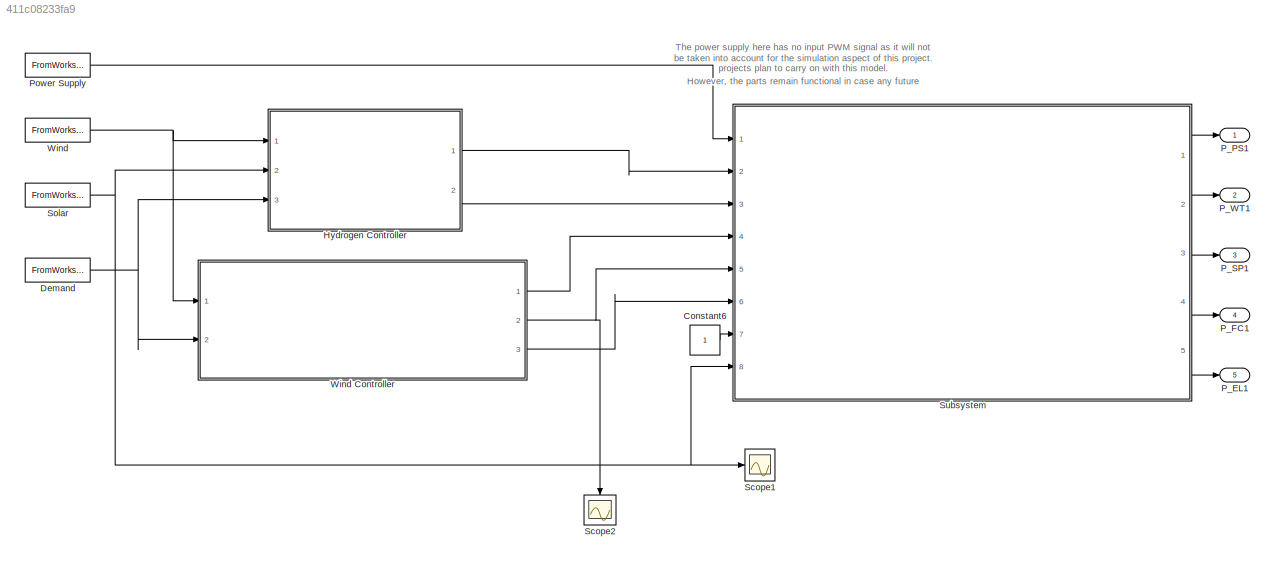
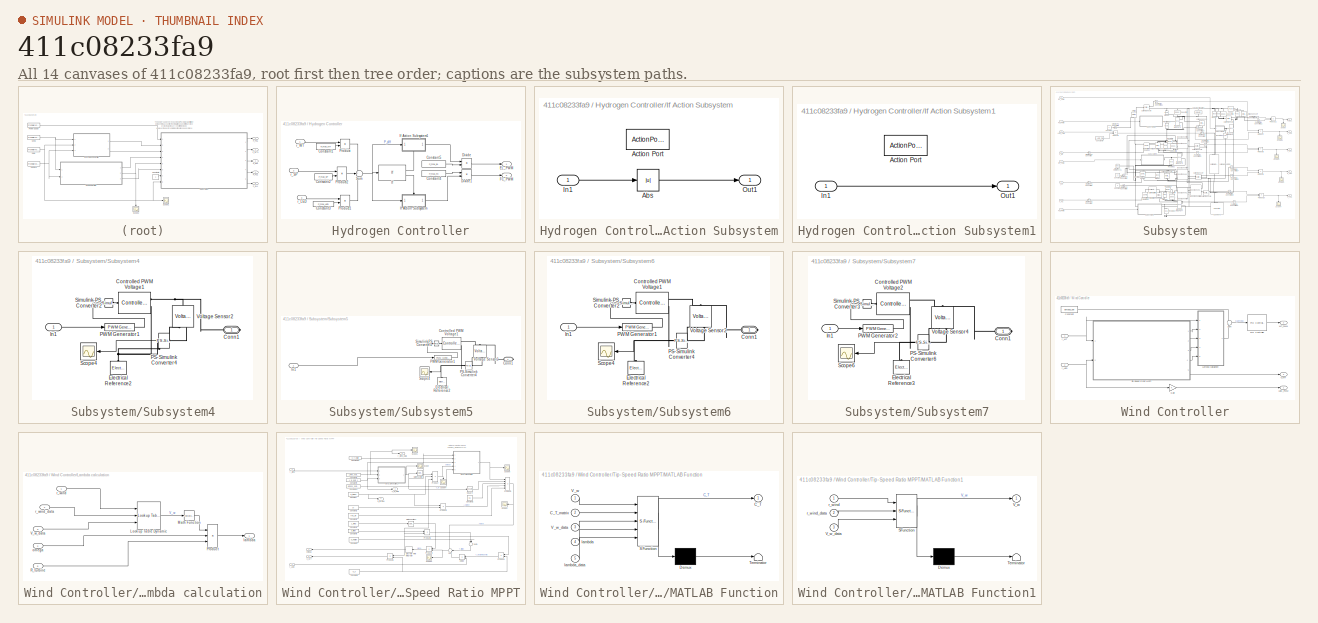
[diagram: thumbnail index - all 14 canvases of the model, root first then tree order]
MODEL slx_411c08233fa9
KIND model
CONFIG AbsTol = auto
CONFIG EnableMultiTasking = off
CONFIG FixedStep = auto
CONFIG MaxStep = auto
CONFIG MinStep = auto
CONFIG RelTol = 1e-3
CONFIG SampleTimeConstraint = Unconstrained
CONFIG Solver = VariableStepAuto
CONFIG SolverName = VariableStepAuto
CONFIG StartTime = 0.0
CONFIG StopTime = T_sim
BLOCK [Constant] Constant6
BLOCK [FromWorkspace] Demand
  Interpolate = off
  OutputAfterFinalValue = Holding final value
  SampleTime = step_size
  VariableName = r_LED
  ZeroCross = on
BLOCK [SubSystem] Hydrogen Controller
  Ports = [3, 2]
  RequestExecContextInheritance = off
BLOCK [Constant] Hydrogen Controller/Constant1
  Value = P_max_WT
BLOCK [Constant] Hydrogen Controller/Constant2
  Value = P_max_SP
BLOCK [Constant] Hydrogen Controller/Constant3
  Value = P_max_LED
BLOCK [Constant] Hydrogen Controller/Constant4
  Value = P_max_FC
BLOCK [Constant] Hydrogen Controller/Constant5
  Value = P_max_EL
BLOCK [Product] Hydrogen Controller/Divide
  InputSameDT = off
  Inputs = */
  OutDataTypeStr = Inherit: Inherit via internal rule
  Ports = [2, 1]
  RndMeth = Floor
  SaturateOnIntegerOverflow = off
BLOCK [Product] Hydrogen Controller/Divide1
  InputSameDT = off
  Inputs = /*
  OutDataTypeStr = Inherit: Inherit via internal rule
  Ports = [2, 1]
  RndMeth = Floor
  SaturateOnIntegerOverflow = off
BLOCK [Outport] Hydrogen Controller/EL_PWM
  IconDisplay = Port number
  VectorParamsAs1DForOutWhenUnconnected = on
BLOCK [Outport] Hydrogen Controller/FC_PWM
  IconDisplay = Port number
  Port = 2
  VectorParamsAs1DForOutWhenUnconnected = on
BLOCK [If] Hydrogen Controller/If
  Ports = [1, 2]
BLOCK [SubSystem] Hydrogen Controller/If Action Subsystem
  Ports = [1, 1, 0, 0, 0, 0, 0, 1]
  RequestExecContextInheritance = off
  TreatAsAtomicUnit = on
BLOCK [Abs] Hydrogen Controller/If Action Subsystem/Abs
  SaturateOnIntegerOverflow = off
BLOCK [ActionPort] Hydrogen Controller/If Action Subsystem/Action Port
BLOCK [Inport] Hydrogen Controller/If Action Subsystem/In1
  IconDisplay = Port number
BLOCK [Outport] Hydrogen Controller/If Action Subsystem/Out1
  IconDisplay = Port number
  VectorParamsAs1DForOutWhenUnconnected = on
BLOCK [SubSystem] Hydrogen Controller/If Action Subsystem1
  Ports = [1, 1, 0, 0, 0, 0, 0, 1]
  RequestExecContextInheritance = off
  TreatAsAtomicUnit = on
BLOCK [ActionPort] Hydrogen Controller/If Action Subsystem1/Action Port
BLOCK [Inport] Hydrogen Controller/If Action Subsystem1/In1
  IconDisplay = Port number
BLOCK [Outport] Hydrogen Controller/If Action Subsystem1/Out1
  IconDisplay = Port number
  VectorParamsAs1DForOutWhenUnconnected = on
BLOCK [Product] Hydrogen Controller/Product
  InputSameDT = off
  OutDataTypeStr = Inherit: Inherit via internal rule
  Ports = [2, 1]
  RndMeth = Floor
  SaturateOnIntegerOverflow = off
BLOCK [Product] Hydrogen Controller/Product1
  InputSameDT = off
  OutDataTypeStr = Inherit: Inherit via internal rule
  Ports = [2, 1]
  RndMeth = Floor
  SaturateOnIntegerOverflow = off
BLOCK [Product] Hydrogen Controller/Product2
  InputSameDT = off
  OutDataTypeStr = Inherit: Inherit via internal rule
  Ports = [2, 1]
  RndMeth = Floor
  SaturateOnIntegerOverflow = off
BLOCK [Sum] Hydrogen Controller/Sum
  IconShape = round
  InputSameDT = off
  Inputs = ++-
  OutDataTypeStr = Inherit: Inherit via internal rule
  Ports = [3, 1]
  SaturateOnIntegerOverflow = off
BLOCK [Inport] Hydrogen Controller/r_LED
  IconDisplay = Port number
  Port = 3
BLOCK [Inport] Hydrogen Controller/r_SP
  IconDisplay = Port number
  Port = 2
BLOCK [Inport] Hydrogen Controller/r_WT
  IconDisplay = Port number
BLOCK [Outport] P_EL1
  IconDisplay = Port number
  Port = 5
  VectorParamsAs1DForOutWhenUnconnected = on
BLOCK [Outport] P_FC1
  IconDisplay = Port number
  Port = 4
  VectorParamsAs1DForOutWhenUnconnected = on
BLOCK [Outport] P_PS1
  IconDisplay = Port number
  VectorParamsAs1DForOutWhenUnconnected = on
BLOCK [Outport] P_SP1
  IconDisplay = Port number
  Port = 3
  VectorParamsAs1DForOutWhenUnconnected = on
BLOCK [Outport] P_WT1
  IconDisplay = Port number
  Port = 2
  VectorParamsAs1DForOutWhenUnconnected = on
BLOCK [FromWorkspace] Power Supply
  Interpolate = off
  OutputAfterFinalValue = Holding final value
  SampleTime = step_size
  VariableName = r_PS
  ZeroCross = on
BLOCK [Scope] Scope1
  Floating = off
  NumInputPorts = 1
  Ports = [1]
  ScopeSpecificationString = Simulink.scopes.TimeScopeBlockCfg('CurrentConfiguration', extmgr.ConfigurationSet(extmgr.Configuration('Core','General UI',true),extmgr.Configuration('Core','Source UI',true),extmgr.Configuration('Sources','WiredSimulink',true,'DataLoggingVariableName','ScopeData13'),extmgr.Configuration('Visuals','Time Domain',true),extmgr.Configuration('Tools','Plot Navigation',true),extmgr.Configuration('Tools'...<+41ch>
BLOCK [Scope] Scope2
  Floating = off
  NumInputPorts = 1
  Ports = [1]
  ScopeSpecificationString = Simulink.scopes.TimeScopeBlockCfg('CurrentConfiguration', extmgr.ConfigurationSet(extmgr.Configuration('Core','General UI',true),extmgr.Configuration('Core','Source UI',true),extmgr.Configuration('Sources','WiredSimulink',true,'DataLoggingVariableName','ScopeData14'),extmgr.Configuration('Visuals','Time Domain',true,'SerializedDisplays',{struct('MinYLimReal','-1.10014','MaxYLimReal','8.90126','YLa...<+1407ch>
BLOCK [FromWorkspace] Solar
  Interpolate = off
  OutputAfterFinalValue = Holding final value
  SampleTime = step_size
  VariableName = r_SP
  ZeroCross = on
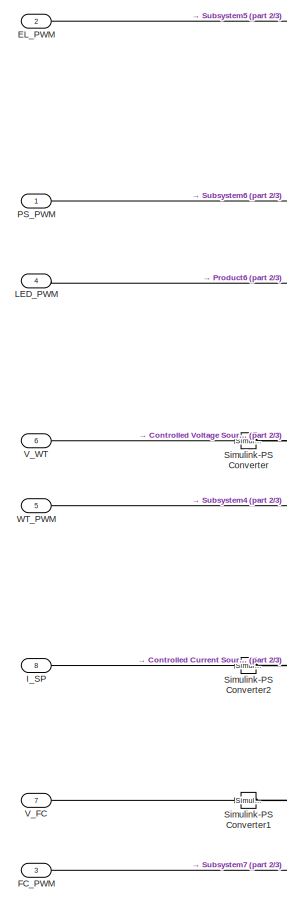
[diagram: Subsystem - part 1/3, left side, full height]
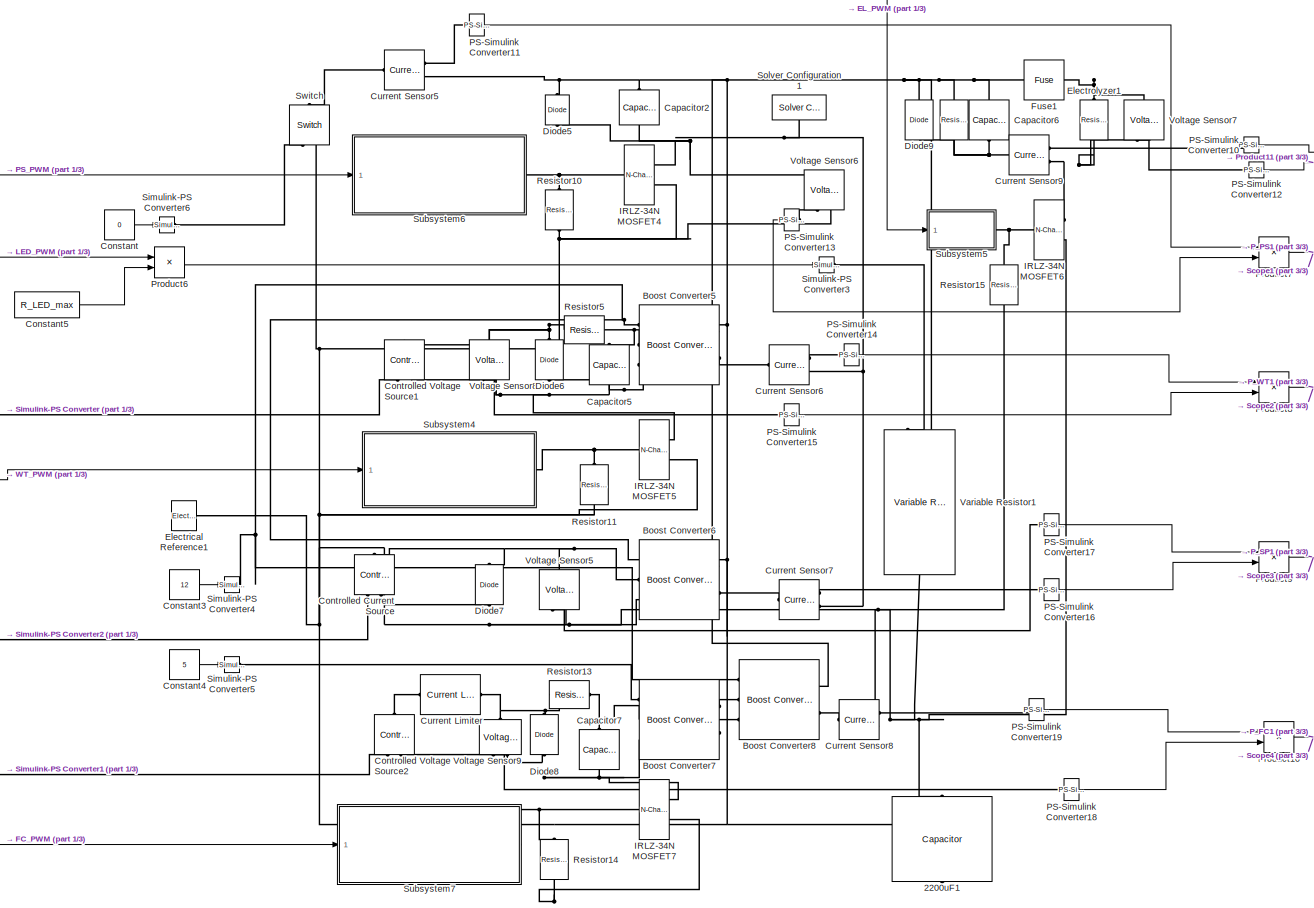
[diagram: Subsystem - part 2/3, center side, full height]
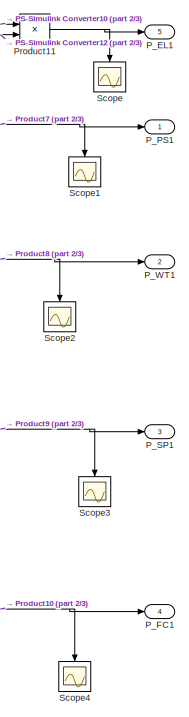
[diagram: Subsystem - part 3/3, right side, full height]
BLOCK [SubSystem] Subsystem
  Ports = [8, 5]
  RequestExecContextInheritance = off
BLOCK [Reference] Subsystem/   REF=fl_lib/Electrical/Electrical Elements/Resistor
  Ports = [0, 0, 0, 0, 0, 1, 1]
  SourceBlock = fl_lib/Electrical/Electrical Elements/Resistor
  SourceProductBaseCode = SS
  SourceProductName = Simscape
  SourceType = Resistor
BLOCK [Reference] Subsystem/2200uF1  REF=fl_lib/Electrical/Electrical Elements/Capacitor
  Ports = [0, 0, 0, 0, 0, 1, 1]
  SourceBlock = fl_lib/Electrical/Electrical Elements/Capacitor
  SourceProductBaseCode = SS
  SourceProductName = Simscape
  SourceType = Capacitor
BLOCK [Reference] Subsystem/Boost Converter5  REF=ee_lib/Semiconductors &
Converters/Converters/Boost Converter
  Ports = [0, 0, 0, 0, 0, 3, 2]
  SourceBlock = ee_lib/Semiconductors &\nConverters/Converters/Boost Converter
  SourceProductBaseCode = PS
  SourceProductName = Simscape Electrical
  SourceType = Boost Converter
BLOCK [Reference] Subsystem/Boost Converter6  REF=ee_lib/Semiconductors &
Converters/Converters/Boost Converter
  Ports = [0, 0, 0, 0, 0, 3, 2]
  SourceBlock = ee_lib/Semiconductors &\nConverters/Converters/Boost Converter
  SourceProductBaseCode = PS
  SourceProductName = Simscape Electrical
  SourceType = Boost Converter
BLOCK [Reference] Subsystem/Boost Converter7  REF=ee_lib/Semiconductors &
Converters/Converters/Boost Converter
  Ports = [0, 0, 0, 0, 0, 3, 2]
  SourceBlock = ee_lib/Semiconductors &\nConverters/Converters/Boost Converter
  SourceProductBaseCode = PS
  SourceProductName = Simscape Electrical
  SourceType = Boost Converter
BLOCK [Reference] Subsystem/Boost Converter8  REF=ee_lib/Semiconductors &
Converters/Converters/Boost Converter
  Ports = [0, 0, 0, 0, 0, 3, 2]
  SourceBlock = ee_lib/Semiconductors &\nConverters/Converters/Boost Converter
  SourceProductBaseCode = PS
  SourceProductName = Simscape Electrical
  SourceType = Boost Converter
BLOCK [Reference] Subsystem/Capacitor2  REF=fl_lib/Electrical/Electrical Elements/Capacitor
  Ports = [0, 0, 0, 0, 0, 1, 1]
  SourceBlock = fl_lib/Electrical/Electrical Elements/Capacitor
  SourceProductBaseCode = SS
  SourceProductName = Simscape
  SourceType = Capacitor
BLOCK [Reference] Subsystem/Capacitor5  REF=fl_lib/Electrical/Electrical Elements/Capacitor
  Ports = [0, 0, 0, 0, 0, 1, 1]
  SourceBlock = fl_lib/Electrical/Electrical Elements/Capacitor
  SourceProductBaseCode = SS
  SourceProductName = Simscape
  SourceType = Capacitor
BLOCK [Reference] Subsystem/Capacitor6  REF=fl_lib/Electrical/Electrical Elements/Capacitor
  Ports = [0, 0, 0, 0, 0, 1, 1]
  SourceBlock = fl_lib/Electrical/Electrical Elements/Capacitor
  SourceProductBaseCode = SS
  SourceProductName = Simscape
  SourceType = Capacitor
BLOCK [Reference] Subsystem/Capacitor7  REF=fl_lib/Electrical/Electrical Elements/Capacitor
  Ports = [0, 0, 0, 0, 0, 1, 1]
  SourceBlock = fl_lib/Electrical/Electrical Elements/Capacitor
  SourceProductBaseCode = SS
  SourceProductName = Simscape
  SourceType = Capacitor
BLOCK [Constant] Subsystem/Constant
  Value = 0
BLOCK [Constant] Subsystem/Constant3
  Value = 12
BLOCK [Constant] Subsystem/Constant4
  Value = 5
BLOCK [Constant] Subsystem/Constant5
  Value = R_LED_max
BLOCK [Reference] Subsystem/Controlled Current Source  REF=fl_lib/Electrical/Electrical Sources/Controlled Current
Source
  Ports = [0, 0, 0, 0, 0, 1, 2]
  SourceBlock = fl_lib/Electrical/Electrical Sources/Controlled Current\nSource
  SourceProductBaseCode = SS
  SourceProductName = Simscape
  SourceType = Controlled Current\nSource
BLOCK [Reference] Subsystem/Controlled Voltage Source1  REF=fl_lib/Electrical/Electrical Sources/Controlled Voltage
Source
  Ports = [0, 0, 0, 0, 0, 1, 2]
  SourceBlock = fl_lib/Electrical/Electrical Sources/Controlled Voltage\nSource
  SourceProductBaseCode = SS
  SourceProductName = Simscape
  SourceType = Controlled Voltage\nSource
BLOCK [Reference] Subsystem/Controlled Voltage Source2  REF=fl_lib/Electrical/Electrical Sources/Controlled Voltage
Source
  Ports = [0, 0, 0, 0, 0, 1, 2]
  SourceBlock = fl_lib/Electrical/Electrical Sources/Controlled Voltage\nSource
  SourceProductBaseCode = SS
  SourceProductName = Simscape
  SourceType = Controlled Voltage\nSource
BLOCK [Reference] Subsystem/Current Limiter  REF=ee_lib/Semiconductors &
Converters/Current Limiter
  Ports = [0, 0, 0, 0, 0, 1, 1]
  SourceBlock = ee_lib/Semiconductors &\nConverters/Current Limiter
  SourceProductBaseCode = PS
  SourceProductName = Simscape Electrical
  SourceType = Current Limiter
BLOCK [Reference] Subsystem/Current Sensor5  REF=fl_lib/Electrical/Electrical Sensors/Current Sensor
  Ports = [0, 0, 0, 0, 0, 1, 2]
  SourceBlock = fl_lib/Electrical/Electrical Sensors/Current Sensor
  SourceProductBaseCode = SS
  SourceProductName = Simscape
  SourceType = Current Sensor
BLOCK [Reference] Subsystem/Current Sensor6  REF=fl_lib/Electrical/Electrical Sensors/Current Sensor
  Ports = [0, 0, 0, 0, 0, 1, 2]
  SourceBlock = fl_lib/Electrical/Electrical Sensors/Current Sensor
  SourceProductBaseCode = SS
  SourceProductName = Simscape
  SourceType = Current Sensor
BLOCK [Reference] Subsystem/Current Sensor7  REF=fl_lib/Electrical/Electrical Sensors/Current Sensor
  Ports = [0, 0, 0, 0, 0, 1, 2]
  SourceBlock = fl_lib/Electrical/Electrical Sensors/Current Sensor
  SourceProductBaseCode = SS
  SourceProductName = Simscape
  SourceType = Current Sensor
BLOCK [Reference] Subsystem/Current Sensor8  REF=fl_lib/Electrical/Electrical Sensors/Current Sensor
  Ports = [0, 0, 0, 0, 0, 1, 2]
  SourceBlock = fl_lib/Electrical/Electrical Sensors/Current Sensor
  SourceProductBaseCode = SS
  SourceProductName = Simscape
  SourceType = Current Sensor
BLOCK [Reference] Subsystem/Current Sensor9  REF=fl_lib/Electrical/Electrical Sensors/Current Sensor
  Ports = [0, 0, 0, 0, 0, 1, 2]
  SourceBlock = fl_lib/Electrical/Electrical Sensors/Current Sensor
  SourceProductBaseCode = SS
  SourceProductName = Simscape
  SourceType = Current Sensor
BLOCK [Reference] Subsystem/Diode5  REF=ee_lib/Semiconductors &
Converters/Diode
  Ports = [0, 0, 0, 0, 0, 1, 1]
  SourceBlock = ee_lib/Semiconductors &\nConverters/Diode
  SourceProductBaseCode = PS
  SourceProductName = Simscape Electrical
  SourceType = Diode
BLOCK [Reference] Subsystem/Diode6  REF=ee_lib/Semiconductors &
Converters/Diode
  Ports = [0, 0, 0, 0, 0, 1, 1]
  SourceBlock = ee_lib/Semiconductors &\nConverters/Diode
  SourceProductBaseCode = PS
  SourceProductName = Simscape Electrical
  SourceType = Diode
BLOCK [Reference] Subsystem/Diode7  REF=ee_lib/Semiconductors &
Converters/Diode
  Ports = [0, 0, 0, 0, 0, 1, 1]
  SourceBlock = ee_lib/Semiconductors &\nConverters/Diode
  SourceProductBaseCode = PS
  SourceProductName = Simscape Electrical
  SourceType = Diode
BLOCK [Reference] Subsystem/Diode8  REF=ee_lib/Semiconductors &
Converters/Diode
  Ports = [0, 0, 0, 0, 0, 1, 1]
  SourceBlock = ee_lib/Semiconductors &\nConverters/Diode
  SourceProductBaseCode = PS
  SourceProductName = Simscape Electrical
  SourceType = Diode
BLOCK [Reference] Subsystem/Diode9  REF=ee_lib/Semiconductors &
Converters/Diode
  Ports = [0, 0, 0, 0, 0, 1, 1]
  SourceBlock = ee_lib/Semiconductors &\nConverters/Diode
  SourceProductBaseCode = PS
  SourceProductName = Simscape Electrical
  SourceType = Diode
BLOCK [Inport] Subsystem/EL_PWM
  IconDisplay = Port number
  Port = 2
BLOCK [Reference] Subsystem/Electrical Reference1  REF=fl_lib/Electrical/Electrical Elements/Electrical Reference
  Ports = [0, 0, 0, 0, 0, 1]
  SourceBlock = fl_lib/Electrical/Electrical Elements/Electrical Reference
  SourceProductBaseCode = SS
  SourceProductName = Simscape
  SourceType = Electrical Reference
BLOCK [Reference] Subsystem/Electrolyzer1  REF=fl_lib/Electrical/Electrical Elements/Resistor
  Ports = [0, 0, 0, 0, 0, 1, 1]
  SourceBlock = fl_lib/Electrical/Electrical Elements/Resistor
  SourceProductBaseCode = SS
  SourceProductName = Simscape
  SourceType = Resistor
BLOCK [Inport] Subsystem/FC_PWM
  IconDisplay = Port number
  Port = 3
BLOCK [Reference] Subsystem/Fuse1  REF=ee_lib/Switches & Breakers/Fuse
  Ports = [0, 0, 0, 0, 0, 1, 1]
  SourceBlock = ee_lib/Switches & Breakers/Fuse
  SourceProductBaseCode = PS
  SourceProductName = Simscape Electrical
  SourceType = Fuse
BLOCK [Reference] Subsystem/IRLZ-34N MOSFET4  REF=ee_lib/Semiconductors &
Converters/N-Channel MOSFET
  Ports = [0, 0, 0, 0, 0, 1, 2]
  SourceBlock = ee_lib/Semiconductors &\nConverters/N-Channel MOSFET
  SourceProductBaseCode = PS
  SourceProductName = Simscape Electrical
  SourceType = N-Channel MOSFET
BLOCK [Reference] Subsystem/IRLZ-34N MOSFET5  REF=ee_lib/Semiconductors &
Converters/N-Channel MOSFET
  Ports = [0, 0, 0, 0, 0, 1, 2]
  SourceBlock = ee_lib/Semiconductors &\nConverters/N-Channel MOSFET
  SourceProductBaseCode = PS
  SourceProductName = Simscape Electrical
  SourceType = N-Channel MOSFET
BLOCK [Reference] Subsystem/IRLZ-34N MOSFET6  REF=ee_lib/Semiconductors &
Converters/N-Channel MOSFET
  Ports = [0, 0, 0, 0, 0, 1, 2]
  SourceBlock = ee_lib/Semiconductors &\nConverters/N-Channel MOSFET
  SourceProductBaseCode = PS
  SourceProductName = Simscape Electrical
  SourceType = N-Channel MOSFET
BLOCK [Reference] Subsystem/IRLZ-34N MOSFET7  REF=ee_lib/Semiconductors &
Converters/N-Channel MOSFET
  Ports = [0, 0, 0, 0, 0, 1, 2]
  SourceBlock = ee_lib/Semiconductors &\nConverters/N-Channel MOSFET
  SourceProductBaseCode = PS
  SourceProductName = Simscape Electrical
  SourceType = N-Channel MOSFET
BLOCK [Inport] Subsystem/I_SP
  IconDisplay = Port number
  Port = 8
BLOCK [Inport] Subsystem/LED_PWM
  IconDisplay = Port number
  Port = 4
BLOCK [Reference] Subsystem/PS-Simulink Converter10  REF=nesl_utility/PS-Simulink
Converter
  Ports = [0, 1, 0, 0, 0, 1]
  SourceBlock = nesl_utility/PS-Simulink\nConverter
  SourceProductBaseCode = SS
  SourceProductName = Simscape
  SourceType = PS-Simulink\nConverter
BLOCK [Reference] Subsystem/PS-Simulink Converter11  REF=nesl_utility/PS-Simulink
Converter
  Ports = [0, 1, 0, 0, 0, 1]
  SourceBlock = nesl_utility/PS-Simulink\nConverter
  SourceProductBaseCode = SS
  SourceProductName = Simscape
  SourceType = PS-Simulink\nConverter
BLOCK [Reference] Subsystem/PS-Simulink Converter12  REF=nesl_utility/PS-Simulink
Converter
  Ports = [0, 1, 0, 0, 0, 1]
  SourceBlock = nesl_utility/PS-Simulink\nConverter
  SourceProductBaseCode = SS
  SourceProductName = Simscape
  SourceType = PS-Simulink\nConverter
BLOCK [Reference] Subsystem/PS-Simulink Converter13  REF=nesl_utility/PS-Simulink
Converter
  Ports = [0, 1, 0, 0, 0, 1]
  SourceBlock = nesl_utility/PS-Simulink\nConverter
  SourceProductBaseCode = SS
  SourceProductName = Simscape
  SourceType = PS-Simulink\nConverter
BLOCK [Reference] Subsystem/PS-Simulink Converter14  REF=nesl_utility/PS-Simulink
Converter
  Ports = [0, 1, 0, 0, 0, 1]
  SourceBlock = nesl_utility/PS-Simulink\nConverter
  SourceProductBaseCode = SS
  SourceProductName = Simscape
  SourceType = PS-Simulink\nConverter
BLOCK [Reference] Subsystem/PS-Simulink Converter15  REF=nesl_utility/PS-Simulink
Converter
  Ports = [0, 1, 0, 0, 0, 1]
  SourceBlock = nesl_utility/PS-Simulink\nConverter
  SourceProductBaseCode = SS
  SourceProductName = Simscape
  SourceType = PS-Simulink\nConverter
BLOCK [Reference] Subsystem/PS-Simulink Converter16  REF=nesl_utility/PS-Simulink
Converter
  Ports = [0, 1, 0, 0, 0, 1]
  SourceBlock = nesl_utility/PS-Simulink\nConverter
  SourceProductBaseCode = SS
  SourceProductName = Simscape
  SourceType = PS-Simulink\nConverter
BLOCK [Reference] Subsystem/PS-Simulink Converter17  REF=nesl_utility/PS-Simulink
Converter
  Ports = [0, 1, 0, 0, 0, 1]
  SourceBlock = nesl_utility/PS-Simulink\nConverter
  SourceProductBaseCode = SS
  SourceProductName = Simscape
  SourceType = PS-Simulink\nConverter
BLOCK [Reference] Subsystem/PS-Simulink Converter18  REF=nesl_utility/PS-Simulink
Converter
  Ports = [0, 1, 0, 0, 0, 1]
  SourceBlock = nesl_utility/PS-Simulink\nConverter
  SourceProductBaseCode = SS
  SourceProductName = Simscape
  SourceType = PS-Simulink\nConverter
BLOCK [Reference] Subsystem/PS-Simulink Converter19  REF=nesl_utility/PS-Simulink
Converter
  Ports = [0, 1, 0, 0, 0, 1]
  SourceBlock = nesl_utility/PS-Simulink\nConverter
  SourceProductBaseCode = SS
  SourceProductName = Simscape
  SourceType = PS-Simulink\nConverter
BLOCK [Inport] Subsystem/PS_PWM
  IconDisplay = Port number
BLOCK [Outport] Subsystem/P_EL1
  IconDisplay = Port number
  Port = 5
  VectorParamsAs1DForOutWhenUnconnected = on
BLOCK [Outport] Subsystem/P_FC1
  IconDisplay = Port number
  Port = 4
  VectorParamsAs1DForOutWhenUnconnected = on
BLOCK [Outport] Subsystem/P_PS1
  IconDisplay = Port number
  VectorParamsAs1DForOutWhenUnconnected = on
BLOCK [Outport] Subsystem/P_SP1
  IconDisplay = Port number
  Port = 3
  VectorParamsAs1DForOutWhenUnconnected = on
BLOCK [Outport] Subsystem/P_WT1
  IconDisplay = Port number
  Port = 2
  VectorParamsAs1DForOutWhenUnconnected = on
BLOCK [Product] Subsystem/Product10
  InputSameDT = off
  OutDataTypeStr = Inherit: Inherit via internal rule
  Ports = [2, 1]
  RndMeth = Floor
  SaturateOnIntegerOverflow = off
BLOCK [Product] Subsystem/Product11
  InputSameDT = off
  OutDataTypeStr = Inherit: Inherit via internal rule
  Ports = [2, 1]
  RndMeth = Floor
  SaturateOnIntegerOverflow = off
BLOCK [Product] Subsystem/Product6
  InputSameDT = off
  OutDataTypeStr = Inherit: Inherit via internal rule
  Ports = [2, 1]
  RndMeth = Floor
  SaturateOnIntegerOverflow = off
BLOCK [Product] Subsystem/Product7
  InputSameDT = off
  OutDataTypeStr = Inherit: Inherit via internal rule
  Ports = [2, 1]
  RndMeth = Floor
  SaturateOnIntegerOverflow = off
BLOCK [Product] Subsystem/Product8
  InputSameDT = off
  OutDataTypeStr = Inherit: Inherit via internal rule
  Ports = [2, 1]
  RndMeth = Floor
  SaturateOnIntegerOverflow = off
BLOCK [Product] Subsystem/Product9
  InputSameDT = off
  OutDataTypeStr = Inherit: Inherit via internal rule
  Ports = [2, 1]
  RndMeth = Floor
  SaturateOnIntegerOverflow = off
BLOCK [Reference] Subsystem/Resistor10  REF=fl_lib/Electrical/Electrical Elements/Resistor
  Ports = [0, 0, 0, 0, 0, 1, 1]
  SourceBlock = fl_lib/Electrical/Electrical Elements/Resistor
  SourceProductBaseCode = SS
  SourceProductName = Simscape
  SourceType = Resistor
BLOCK [Reference] Subsystem/Resistor11  REF=fl_lib/Electrical/Electrical Elements/Resistor
  Ports = [0, 0, 0, 0, 0, 1, 1]
  SourceBlock = fl_lib/Electrical/Electrical Elements/Resistor
  SourceProductBaseCode = SS
  SourceProductName = Simscape
  SourceType = Resistor
BLOCK [Reference] Subsystem/Resistor13  REF=fl_lib/Electrical/Electrical Elements/Resistor
  Ports = [0, 0, 0, 0, 0, 1, 1]
  SourceBlock = fl_lib/Electrical/Electrical Elements/Resistor
  SourceProductBaseCode = SS
  SourceProductName = Simscape
  SourceType = Resistor
BLOCK [Reference] Subsystem/Resistor14  REF=fl_lib/Electrical/Electrical Elements/Resistor
  Ports = [0, 0, 0, 0, 0, 1, 1]
  SourceBlock = fl_lib/Electrical/Electrical Elements/Resistor
  SourceProductBaseCode = SS
  SourceProductName = Simscape
  SourceType = Resistor
BLOCK [Reference] Subsystem/Resistor15  REF=fl_lib/Electrical/Electrical Elements/Resistor
  Ports = [0, 0, 0, 0, 0, 1, 1]
  SourceBlock = fl_lib/Electrical/Electrical Elements/Resistor
  SourceProductBaseCode = SS
  SourceProductName = Simscape
  SourceType = Resistor
BLOCK [Reference] Subsystem/Resistor5  REF=fl_lib/Electrical/Electrical Elements/Resistor
  Ports = [0, 0, 0, 0, 0, 1, 1]
  SourceBlock = fl_lib/Electrical/Electrical Elements/Resistor
  SourceProductBaseCode = SS
  SourceProductName = Simscape
  SourceType = Resistor
BLOCK [Scope] Subsystem/Scope
  Floating = off
  NumInputPorts = 1
  Ports = [1]
  ScopeSpecificationString = Simulink.scopes.TimeScopeBlockCfg('CurrentConfiguration', extmgr.ConfigurationSet(extmgr.Configuration('Core','General UI',true),extmgr.Configuration('Core','Source UI',true),extmgr.Configuration('Sources','WiredSimulink',true,'DataLoggingVariableName','ScopeData8'),extmgr.Configuration('Visuals','Time Domain',true,'SerializedDisplays',{struct('MinYLimReal','-1.00000','MaxYLimReal','1.00000','YLab...<+1368ch>
BLOCK [Scope] Subsystem/Scope1
  Floating = off
  NumInputPorts = 1
  Ports = [1]
  ScopeSpecificationString = Simulink.scopes.TimeScopeBlockCfg('CurrentConfiguration', extmgr.ConfigurationSet(extmgr.Configuration('Core','General UI',true),extmgr.Configuration('Core','Source UI',true),extmgr.Configuration('Sources','WiredSimulink',true,'DataLoggingVariableName','ScopeData9'),extmgr.Configuration('Visuals','Time Domain',true,'SerializedDisplays',{struct('MinYLimReal','-1.00000','MaxYLimReal','1.00000','YLab...<+1367ch>
BLOCK [Scope] Subsystem/Scope2
  Floating = off
  NumInputPorts = 1
  Ports = [1]
  ScopeSpecificationString = Simulink.scopes.TimeScopeBlockCfg('CurrentConfiguration', extmgr.ConfigurationSet(extmgr.Configuration('Core','General UI',true),extmgr.Configuration('Core','Source UI',true),extmgr.Configuration('Sources','WiredSimulink',true,'DataLoggingVariableName','ScopeData10'),extmgr.Configuration('Visuals','Time Domain',true,'SerializedDisplays',{struct('MinYLimReal','-1.00000','MaxYLimReal','1.00000','YLa...<+1368ch>
BLOCK [Scope] Subsystem/Scope3
  Floating = off
  NumInputPorts = 1
  Ports = [1]
  ScopeSpecificationString = Simulink.scopes.TimeScopeBlockCfg('CurrentConfiguration', extmgr.ConfigurationSet(extmgr.Configuration('Core','General UI',true),extmgr.Configuration('Core','Source UI',true),extmgr.Configuration('Sources','WiredSimulink',true,'DataLoggingVariableName','ScopeData11'),extmgr.Configuration('Visuals','Time Domain',true,'SerializedDisplays',{struct('MinYLimReal','-32.19426','MaxYLimReal','3.57714','YL...<+1399ch>
BLOCK [Scope] Subsystem/Scope4
  Floating = off
  NumInputPorts = 1
  Ports = [1]
  ScopeSpecificationString = Simulink.scopes.TimeScopeBlockCfg('CurrentConfiguration', extmgr.ConfigurationSet(extmgr.Configuration('Core','General UI',true),extmgr.Configuration('Core','Source UI',true),extmgr.Configuration('Sources','WiredSimulink',true,'DataLoggingVariableName','ScopeData12'),extmgr.Configuration('Visuals','Time Domain',true,'SerializedDisplays',{struct('MinYLimReal','-5.02369','MaxYLimReal','45.21323','YL...<+1400ch>
BLOCK [Reference] Subsystem/Simulink-PS Converter  REF=nesl_utility/Simulink-PS
Converter
  Ports = [1, 0, 0, 0, 0, 0, 1]
  SourceBlock = nesl_utility/Simulink-PS\nConverter
  SourceProductBaseCode = SS
  SourceProductName = Simscape
  SourceType = Simulink-PS\nConverter
BLOCK [Reference] Subsystem/Simulink-PS Converter1  REF=nesl_utility/Simulink-PS
Converter
  Ports = [1, 0, 0, 0, 0, 0, 1]
  SourceBlock = nesl_utility/Simulink-PS\nConverter
  SourceProductBaseCode = SS
  SourceProductName = Simscape
  SourceType = Simulink-PS\nConverter
BLOCK [Reference] Subsystem/Simulink-PS Converter2  REF=nesl_utility/Simulink-PS
Converter
  Ports = [1, 0, 0, 0, 0, 0, 1]
  SourceBlock = nesl_utility/Simulink-PS\nConverter
  SourceProductBaseCode = SS
  SourceProductName = Simscape
  SourceType = Simulink-PS\nConverter
BLOCK [Reference] Subsystem/Simulink-PS Converter3  REF=nesl_utility/Simulink-PS
Converter
  Ports = [1, 0, 0, 0, 0, 0, 1]
  SourceBlock = nesl_utility/Simulink-PS\nConverter
  SourceProductBaseCode = SS
  SourceProductName = Simscape
  SourceType = Simulink-PS\nConverter
BLOCK [Reference] Subsystem/Simulink-PS Converter4  REF=nesl_utility/Simulink-PS
Converter
  Ports = [1, 0, 0, 0, 0, 0, 1]
  SourceBlock = nesl_utility/Simulink-PS\nConverter
  SourceProductBaseCode = SS
  SourceProductName = Simscape
  SourceType = Simulink-PS\nConverter
BLOCK [Reference] Subsystem/Simulink-PS Converter5  REF=nesl_utility/Simulink-PS
Converter
  Ports = [1, 0, 0, 0, 0, 0, 1]
  SourceBlock = nesl_utility/Simulink-PS\nConverter
  SourceProductBaseCode = SS
  SourceProductName = Simscape
  SourceType = Simulink-PS\nConverter
BLOCK [Reference] Subsystem/Simulink-PS Converter6  REF=nesl_utility/Simulink-PS
Converter
  Ports = [1, 0, 0, 0, 0, 0, 1]
  SourceBlock = nesl_utility/Simulink-PS\nConverter
  SourceProductBaseCode = SS
  SourceProductName = Simscape
  SourceType = Simulink-PS\nConverter
BLOCK [Reference] Subsystem/Solver Configuration1  REF=nesl_utility/Solver
Configuration
  Ports = [0, 0, 0, 0, 0, 0, 1]
  SourceBlock = nesl_utility/Solver\nConfiguration
  SourceProductBaseCode = SS
  SourceProductName = Simscape
  SourceType = Solver\nConfiguration
BLOCK [SubSystem] Subsystem/Subsystem4
  Ports = [1, 0, 0, 0, 0, 0, 1]
  RequestExecContextInheritance = off
BLOCK [PMIOPort] Subsystem/Subsystem4/Conn1
  Side = Right
BLOCK [Reference] Subsystem/Subsystem4/Controlled PWM Voltage1  REF=ee_lib/Integrated Circuits/Controlled PWM
Voltage
  Ports = [0, 0, 0, 0, 0, 1, 2]
  SourceBlock = ee_lib/Integrated Circuits/Controlled PWM\nVoltage
  SourceProductBaseCode = PS
  SourceProductName = Simscape Electrical
  SourceType = Controlled PWM\nVoltage
BLOCK [Reference] Subsystem/Subsystem4/Electrical Reference2  REF=fl_lib/Electrical/Electrical Elements/Electrical Reference
  Ports = [0, 0, 0, 0, 0, 1]
  SourceBlock = fl_lib/Electrical/Electrical Elements/Electrical Reference
  SourceProductBaseCode = SS
  SourceProductName = Simscape
  SourceType = Electrical Reference
BLOCK [Inport] Subsystem/Subsystem4/In1
  IconDisplay = Port number
BLOCK [Reference] Subsystem/Subsystem4/PS-Simulink Converter4  REF=nesl_utility/PS-Simulink
Converter
  Ports = [0, 1, 0, 0, 0, 1]
  SourceBlock = nesl_utility/PS-Simulink\nConverter
  SourceProductBaseCode = SS
  SourceProductName = Simscape
  SourceType = PS-Simulink\nConverter
BLOCK [Reference] Subsystem/Subsystem4/PWM Generator1  REF=eePwmGenerator/PWM Generator
  Ports = [1, 1]
  SourceBlock = eePwmGenerator/PWM Generator
  SourceProductBaseCode = PS
  SourceProductName = Simscape Electrical
  SourceType = PWM Generator
BLOCK [Scope] Subsystem/Subsystem4/Scope4
  Floating = off
  NumInputPorts = 1
  Ports = [1]
  ScopeSpecificationString = Simulink.scopes.TimeScopeBlockCfg('CurrentConfiguration', extmgr.ConfigurationSet(extmgr.Configuration('Core','General UI',true),extmgr.Configuration('Core','Source UI',true),extmgr.Configuration('Sources','WiredSimulink',true,'DataLoggingVariableName','ScopeData1'),extmgr.Configuration('Visuals','Time Domain',true,'SerializedDisplays',{struct('MinYLimReal','4.77465','MaxYLimReal','4.77476','YLabe...<+1428ch>  <repeated x3 — deduplicated; at blocks: Scope4>
BLOCK [Reference] Subsystem/Subsystem4/Simulink-PS Converter2  REF=nesl_utility/Simulink-PS
Converter
  Ports = [1, 0, 0, 0, 0, 0, 1]
  SourceBlock = nesl_utility/Simulink-PS\nConverter
  SourceProductBaseCode = SS
  SourceProductName = Simscape
  SourceType = Simulink-PS\nConverter
BLOCK [Reference] Subsystem/Subsystem4/Voltage Sensor2  REF=fl_lib/Electrical/Electrical Sensors/Voltage Sensor
  Ports = [0, 0, 0, 0, 0, 1, 2]
  SourceBlock = fl_lib/Electrical/Electrical Sensors/Voltage Sensor
  SourceProductBaseCode = SS
  SourceProductName = Simscape
  SourceType = Voltage Sensor
BLOCK [SubSystem] Subsystem/Subsystem5
  Ports = [1, 0, 0, 0, 0, 0, 1]
  RequestExecContextInheritance = off
BLOCK [PMIOPort] Subsystem/Subsystem5/Conn1
  Side = Right
BLOCK [Reference] Subsystem/Subsystem5/Controlled PWM Voltage1  REF=ee_lib/Integrated Circuits/Controlled PWM
Voltage
  Ports = [0, 0, 0, 0, 0, 1, 2]
  SourceBlock = ee_lib/Integrated Circuits/Controlled PWM\nVoltage
  SourceProductBaseCode = PS
  SourceProductName = Simscape Electrical
  SourceType = Controlled PWM\nVoltage
BLOCK [Reference] Subsystem/Subsystem5/Electrical Reference2  REF=fl_lib/Electrical/Electrical Elements/Electrical Reference
  Ports = [0, 0, 0, 0, 0, 1]
  SourceBlock = fl_lib/Electrical/Electrical Elements/Electrical Reference
  SourceProductBaseCode = SS
  SourceProductName = Simscape
  SourceType = Electrical Reference
BLOCK [Inport] Subsystem/Subsystem5/In1
  IconDisplay = Port number
BLOCK [Reference] Subsystem/Subsystem5/PS-Simulink Converter4  REF=nesl_utility/PS-Simulink
Converter
  Ports = [0, 1, 0, 0, 0, 1]
  SourceBlock = nesl_utility/PS-Simulink\nConverter
  SourceProductBaseCode = SS
  SourceProductName = Simscape
  SourceType = PS-Simulink\nConverter
BLOCK [Reference] Subsystem/Subsystem5/PWM Generator1  REF=eePwmGenerator/PWM Generator
  Ports = [1, 1]
  SourceBlock = eePwmGenerator/PWM Generator
  SourceProductBaseCode = PS
  SourceProductName = Simscape Electrical
  SourceType = PWM Generator
BLOCK [Scope] Subsystem/Subsystem5/Scope4
  Floating = off
  NumInputPorts = 1
  Ports = [1]
BLOCK [Reference] Subsystem/Subsystem5/Simulink-PS Converter2  REF=nesl_utility/Simulink-PS
Converter
  Ports = [1, 0, 0, 0, 0, 0, 1]
  SourceBlock = nesl_utility/Simulink-PS\nConverter
  SourceProductBaseCode = SS
  SourceProductName = Simscape
  SourceType = Simulink-PS\nConverter
BLOCK [Reference] Subsystem/Subsystem5/Voltage Sensor2  REF=fl_lib/Electrical/Electrical Sensors/Voltage Sensor
  Ports = [0, 0, 0, 0, 0, 1, 2]
  SourceBlock = fl_lib/Electrical/Electrical Sensors/Voltage Sensor
  SourceProductBaseCode = SS
  SourceProductName = Simscape
  SourceType = Voltage Sensor
BLOCK [SubSystem] Subsystem/Subsystem6
  Ports = [1, 0, 0, 0, 0, 0, 1]
  RequestExecContextInheritance = off
BLOCK [PMIOPort] Subsystem/Subsystem6/Conn1
  Side = Right
BLOCK [Reference] Subsystem/Subsystem6/Controlled PWM Voltage1  REF=ee_lib/Integrated Circuits/Controlled PWM
Voltage
  Ports = [0, 0, 0, 0, 0, 1, 2]
  SourceBlock = ee_lib/Integrated Circuits/Controlled PWM\nVoltage
  SourceProductBaseCode = PS
  SourceProductName = Simscape Electrical
  SourceType = Controlled PWM\nVoltage
BLOCK [Reference] Subsystem/Subsystem6/Electrical Reference2  REF=fl_lib/Electrical/Electrical Elements/Electrical Reference
  Ports = [0, 0, 0, 0, 0, 1]
  SourceBlock = fl_lib/Electrical/Electrical Elements/Electrical Reference
  SourceProductBaseCode = SS
  SourceProductName = Simscape
  SourceType = Electrical Reference
BLOCK [Inport] Subsystem/Subsystem6/In1
  IconDisplay = Port number
BLOCK [Reference] Subsystem/Subsystem6/PS-Simulink Converter4  REF=nesl_utility/PS-Simulink
Converter
  Ports = [0, 1, 0, 0, 0, 1]
  SourceBlock = nesl_utility/PS-Simulink\nConverter
  SourceProductBaseCode = SS
  SourceProductName = Simscape
  SourceType = PS-Simulink\nConverter
BLOCK [Reference] Subsystem/Subsystem6/PWM Generator1  REF=eePwmGenerator/PWM Generator
  Ports = [1, 1]
  SourceBlock = eePwmGenerator/PWM Generator
  SourceProductBaseCode = PS
  SourceProductName = Simscape Electrical
  SourceType = PWM Generator
BLOCK [Scope] Subsystem/Subsystem6/Scope4
  Floating = off
  NumInputPorts = 1
  Ports = [1]
BLOCK [Reference] Subsystem/Subsystem6/Simulink-PS Converter2  REF=nesl_utility/Simulink-PS
Converter
  Ports = [1, 0, 0, 0, 0, 0, 1]
  SourceBlock = nesl_utility/Simulink-PS\nConverter
  SourceProductBaseCode = SS
  SourceProductName = Simscape
  SourceType = Simulink-PS\nConverter
BLOCK [Reference] Subsystem/Subsystem6/Voltage Sensor2  REF=fl_lib/Electrical/Electrical Sensors/Voltage Sensor
  Ports = [0, 0, 0, 0, 0, 1, 2]
  SourceBlock = fl_lib/Electrical/Electrical Sensors/Voltage Sensor
  SourceProductBaseCode = SS
  SourceProductName = Simscape
  SourceType = Voltage Sensor
BLOCK [SubSystem] Subsystem/Subsystem7
  Ports = [1, 0, 0, 0, 0, 0, 1]
  RequestExecContextInheritance = off
BLOCK [PMIOPort] Subsystem/Subsystem7/Conn1
  Side = Right
BLOCK [Reference] Subsystem/Subsystem7/Controlled PWM Voltage2  REF=ee_lib/Integrated Circuits/Controlled PWM
Voltage
  Ports = [0, 0, 0, 0, 0, 1, 2]
  SourceBlock = ee_lib/Integrated Circuits/Controlled PWM\nVoltage
  SourceProductBaseCode = PS
  SourceProductName = Simscape Electrical
  SourceType = Controlled PWM\nVoltage
BLOCK [Reference] Subsystem/Subsystem7/Electrical Reference3  REF=fl_lib/Electrical/Electrical Elements/Electrical Reference
  Ports = [0, 0, 0, 0, 0, 1]
  SourceBlock = fl_lib/Electrical/Electrical Elements/Electrical Reference
  SourceProductBaseCode = SS
  SourceProductName = Simscape
  SourceType = Electrical Reference
BLOCK [Inport] Subsystem/Subsystem7/In1
  IconDisplay = Port number
BLOCK [Reference] Subsystem/Subsystem7/PS-Simulink Converter6  REF=nesl_utility/PS-Simulink
Converter
  Ports = [0, 1, 0, 0, 0, 1]
  SourceBlock = nesl_utility/PS-Simulink\nConverter
  SourceProductBaseCode = SS
  SourceProductName = Simscape
  SourceType = PS-Simulink\nConverter
BLOCK [Reference] Subsystem/Subsystem7/PWM Generator2  REF=eePwmGenerator/PWM Generator
  Ports = [1, 1]
  SourceBlock = eePwmGenerator/PWM Generator
  SourceProductBaseCode = PS
  SourceProductName = Simscape Electrical
  SourceType = PWM Generator
BLOCK [Scope] Subsystem/Subsystem7/Scope6
  Floating = off
  NumInputPorts = 1
  Ports = [1]
  ScopeSpecificationString = Simulink.scopes.TimeScopeBlockCfg('CurrentConfiguration', extmgr.ConfigurationSet(extmgr.Configuration('Core','General UI',true),extmgr.Configuration('Core','Source UI',true),extmgr.Configuration('Sources','WiredSimulink',true,'DataLoggingVariableName','ScopeData3'),extmgr.Configuration('Visuals','Time Domain',true,'SerializedDisplays',{struct('MinYLimReal','4.77465','MaxYLimReal','4.77476','YLabe...<+1428ch>
BLOCK [Reference] Subsystem/Subsystem7/Simulink-PS Converter3  REF=nesl_utility/Simulink-PS
Converter
  Ports = [1, 0, 0, 0, 0, 0, 1]
  SourceBlock = nesl_utility/Simulink-PS\nConverter
  SourceProductBaseCode = SS
  SourceProductName = Simscape
  SourceType = Simulink-PS\nConverter
BLOCK [Reference] Subsystem/Subsystem7/Voltage Sensor4  REF=fl_lib/Electrical/Electrical Sensors/Voltage Sensor
  Ports = [0, 0, 0, 0, 0, 1, 2]
  SourceBlock = fl_lib/Electrical/Electrical Sensors/Voltage Sensor
  SourceProductBaseCode = SS
  SourceProductName = Simscape
  SourceType = Voltage Sensor
BLOCK [Reference] Subsystem/Switch  REF=fl_lib/Electrical/Electrical Elements/Switch
  Ports = [0, 0, 0, 0, 0, 1, 2]
  SourceBlock = fl_lib/Electrical/Electrical Elements/Switch
  SourceProductBaseCode = SS
  SourceProductName = Simscape
  SourceType = Switch
BLOCK [Inport] Subsystem/V_FC
  IconDisplay = Port number
  Port = 7
BLOCK [Inport] Subsystem/V_WT
  IconDisplay = Port number
  Port = 6
BLOCK [Reference] Subsystem/Variable Resistor1  REF=fl_lib/Electrical/Electrical Elements/Variable Resistor
  Ports = [0, 0, 0, 0, 0, 2, 1]
  SourceBlock = fl_lib/Electrical/Electrical Elements/Variable Resistor
  SourceProductBaseCode = SS
  SourceProductName = Simscape
  SourceType = Variable Resistor
BLOCK [Reference] Subsystem/Voltage Sensor5  REF=fl_lib/Electrical/Electrical Sensors/Voltage Sensor
  Ports = [0, 0, 0, 0, 0, 1, 2]
  SourceBlock = fl_lib/Electrical/Electrical Sensors/Voltage Sensor
  SourceProductBaseCode = SS
  SourceProductName = Simscape
  SourceType = Voltage Sensor
BLOCK [Reference] Subsystem/Voltage Sensor6  REF=fl_lib/Electrical/Electrical Sensors/Voltage Sensor
  Ports = [0, 0, 0, 0, 0, 1, 2]
  SourceBlock = fl_lib/Electrical/Electrical Sensors/Voltage Sensor
  SourceProductBaseCode = SS
  SourceProductName = Simscape
  SourceType = Voltage Sensor
BLOCK [Reference] Subsystem/Voltage Sensor7  REF=fl_lib/Electrical/Electrical Sensors/Voltage Sensor
  Ports = [0, 0, 0, 0, 0, 1, 2]
  SourceBlock = fl_lib/Electrical/Electrical Sensors/Voltage Sensor
  SourceProductBaseCode = SS
  SourceProductName = Simscape
  SourceType = Voltage Sensor
BLOCK [Reference] Subsystem/Voltage Sensor8  REF=fl_lib/Electrical/Electrical Sensors/Voltage Sensor
  Ports = [0, 0, 0, 0, 0, 1, 2]
  SourceBlock = fl_lib/Electrical/Electrical Sensors/Voltage Sensor
  SourceProductBaseCode = SS
  SourceProductName = Simscape
  SourceType = Voltage Sensor
BLOCK [Reference] Subsystem/Voltage Sensor9  REF=fl_lib/Electrical/Electrical Sensors/Voltage Sensor
  Ports = [0, 0, 0, 0, 0, 1, 2]
  SourceBlock = fl_lib/Electrical/Electrical Sensors/Voltage Sensor
  SourceProductBaseCode = SS
  SourceProductName = Simscape
  SourceType = Voltage Sensor
BLOCK [Inport] Subsystem/WT_PWM
  IconDisplay = Port number
  Port = 5
BLOCK [FromWorkspace] Wind
  Interpolate = off
  OutputAfterFinalValue = Holding final value
  SampleTime = step_size
  VariableName = r_WT
  ZeroCross = on
BLOCK [SubSystem] Wind Controller
  Ports = [2, 3]
  RequestExecContextInheritance = off
BLOCK [Constant] Wind Controller/Constant
  Value = lambda_opt
BLOCK [Gain] Wind Controller/Gain
  OutDataTypeStr = Inherit: Inherit via internal rule
  ParamDataTypeStr = Inherit: Inherit via internal rule
  SaturateOnIntegerOverflow = off
BLOCK [Outport] Wind Controller/LED_PWM
  IconDisplay = Port number
  VectorParamsAs1DForOutWhenUnconnected = on
BLOCK [SubSystem] Wind Controller/Lambda calculation
  Ports = [5, 1]
  RequestExecContextInheritance = off
BLOCK [Reference] Wind Controller/Lambda calculation/Lookup Table Dynamic  REF=simulink/Lookup
Tables/Lookup
Table
Dynamic
  Ports = [3, 1]
  SourceBlock = simulink/Lookup\nTables/Lookup\nTable\nDynamic
  SourceProductBaseCode = SL
  SourceProductName = Simulink
  SourceType = Lookup Table Dynamic
BLOCK [Math] Wind Controller/Lambda calculation/Math Function
  Operator = reciprocal
  Ports = [1, 1]
BLOCK [Product] Wind Controller/Lambda calculation/Product
  InputSameDT = off
  Inputs = 3
  OutDataTypeStr = Inherit: Inherit via internal rule
  Ports = [3, 1]
  RndMeth = Floor
  SaturateOnIntegerOverflow = off
BLOCK [Inport] Wind Controller/Lambda calculation/R_turbine
  IconDisplay = Port number
  Port = 5
BLOCK [Inport] Wind Controller/Lambda calculation/V_w_data
  IconDisplay = Port number
  Port = 3
BLOCK [Outport] Wind Controller/Lambda calculation/lambda
  IconDisplay = Port number
  VectorParamsAs1DForOutWhenUnconnected = on
BLOCK [Inport] Wind Controller/Lambda calculation/omega
  IconDisplay = Port number
  Port = 2
BLOCK [Inport] Wind Controller/Lambda calculation/r_wind
  IconDisplay = Port number
BLOCK [Inport] Wind Controller/Lambda calculation/r_wind_data
  IconDisplay = Port number
  Port = 4
BLOCK [Reference] Wind Controller/PID Controller  REF=simulink/Continuous/PID Controller
  Ports = [1, 1]
  SourceBlock = simulink/Continuous/PID Controller
  SourceProductBaseCode = SL
  SourceProductName = Simulink
  SourceType = PID 1dof
BLOCK [Sum] Wind Controller/Sum
  IconShape = round
  InputSameDT = off
  Inputs = -+
  OutDataTypeStr = Inherit: Inherit via internal rule
  Ports = [2, 1]
  SaturateOnIntegerOverflow = off
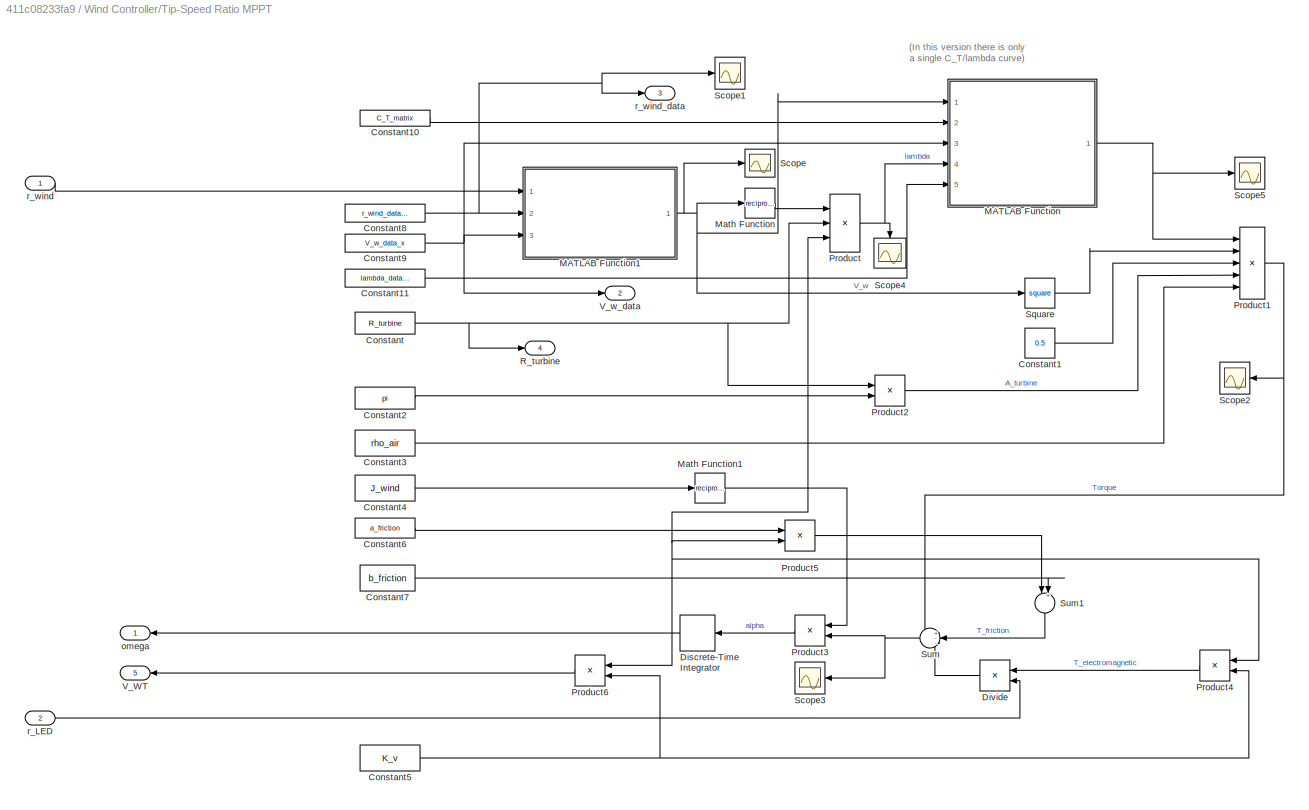
BLOCK [SubSystem] Wind Controller/Tip-Speed Ratio MPPT
  Ports = [2, 5]
  RequestExecContextInheritance = off
BLOCK [Constant] Wind Controller/Tip-Speed Ratio MPPT/Constant
  Value = R_turbine
BLOCK [Constant] Wind Controller/Tip-Speed Ratio MPPT/Constant1
  Value = 0.5
BLOCK [Constant] Wind Controller/Tip-Speed Ratio MPPT/Constant10
  Value = C_T_matrix
BLOCK [Constant] Wind Controller/Tip-Speed Ratio MPPT/Constant11
  Value = lambda_data_x
BLOCK [Constant] Wind Controller/Tip-Speed Ratio MPPT/Constant2
  Value = pi
BLOCK [Constant] Wind Controller/Tip-Speed Ratio MPPT/Constant3
  Value = rho_air
BLOCK [Constant] Wind Controller/Tip-Speed Ratio MPPT/Constant4
  Value = J_wind
BLOCK [Constant] Wind Controller/Tip-Speed Ratio MPPT/Constant5
  Value = K_v
BLOCK [Constant] Wind Controller/Tip-Speed Ratio MPPT/Constant6
  Value = a_friction
BLOCK [Constant] Wind Controller/Tip-Speed Ratio MPPT/Constant7
  Value = b_friction
BLOCK [Constant] Wind Controller/Tip-Speed Ratio MPPT/Constant8
  Value = r_wind_data_x
BLOCK [Constant] Wind Controller/Tip-Speed Ratio MPPT/Constant9
  Value = V_w_data_x
BLOCK [DiscreteIntegrator] Wind Controller/Tip-Speed Ratio MPPT/Discrete-Time Integrator
  ICPrevOutput = DiscIntNeverNeededParam
  ICPrevScaledInput = DiscIntNeverNeededParam
  InitialCondition = omega_0
  InitialConditionSetting = Auto
  IntegratorMethod = Integration: Trapezoidal
  Ports = [1, 1]
  SampleTime = -1
BLOCK [Product] Wind Controller/Tip-Speed Ratio MPPT/Divide
  InputSameDT = off
  Inputs = */
  OutDataTypeStr = Inherit: Inherit via internal rule
  Ports = [2, 1]
  RndMeth = Floor
  SaturateOnIntegerOverflow = off
BLOCK [SubSystem] Wind Controller/Tip-Speed Ratio MPPT/MATLAB Function
  ErrorFcn = Stateflow.Translate.translate
  PermitHierarchicalResolution = ExplicitOnly
  Ports = [5, 1]
  RequestExecContextInheritance = off
  SFBlockType = MATLAB Function
  TreatAsAtomicUnit = on
BLOCK [Demux] Wind Controller/Tip-Speed Ratio MPPT/MATLAB Function/ Demux 
  Outputs = 1
  Ports = [1, 1]
BLOCK [S-Function] Wind Controller/Tip-Speed Ratio MPPT/MATLAB Function/ SFunction 
  EnableBusSupport = on
  FunctionName = sf_sfun
  PortCounts = [5 2]
  Ports = [5, 2]
  SFcnIsStateOwnerBlock = off
  SFunctionDeploymentMode = off
  Tag = Stateflow S-Function FullSystemSim_2018b 2
BLOCK [Terminator] Wind Controller/Tip-Speed Ratio MPPT/MATLAB Function/ Terminator 
BLOCK [Outport] Wind Controller/Tip-Speed Ratio MPPT/MATLAB Function/C_T
  IconDisplay = Port number
  VectorParamsAs1DForOutWhenUnconnected = on
BLOCK [Inport] Wind Controller/Tip-Speed Ratio MPPT/MATLAB Function/C_T_matrix
  IconDisplay = Port number
  Port = 2
BLOCK [Inport] Wind Controller/Tip-Speed Ratio MPPT/MATLAB Function/V_w
  IconDisplay = Port number
BLOCK [Inport] Wind Controller/Tip-Speed Ratio MPPT/MATLAB Function/V_w_data
  IconDisplay = Port number
  Port = 3
BLOCK [Inport] Wind Controller/Tip-Speed Ratio MPPT/MATLAB Function/lambda
  IconDisplay = Port number
  Port = 4
BLOCK [Inport] Wind Controller/Tip-Speed Ratio MPPT/MATLAB Function/lambda_data
  IconDisplay = Port number
  Port = 5
BLOCK [SubSystem] Wind Controller/Tip-Speed Ratio MPPT/MATLAB Function1
  ErrorFcn = Stateflow.Translate.translate
  PermitHierarchicalResolution = ExplicitOnly
  Ports = [3, 1]
  RequestExecContextInheritance = off
  SFBlockType = MATLAB Function
  TreatAsAtomicUnit = on
BLOCK [Demux] Wind Controller/Tip-Speed Ratio MPPT/MATLAB Function1/ Demux 
  Outputs = 1
  Ports = [1, 1]
BLOCK [S-Function] Wind Controller/Tip-Speed Ratio MPPT/MATLAB Function1/ SFunction 
  EnableBusSupport = on
  FunctionName = sf_sfun
  PortCounts = [3 2]
  Ports = [3, 2]
  SFcnIsStateOwnerBlock = off
  SFunctionDeploymentMode = off
  Tag = Stateflow S-Function FullSystemSim_2018b 1
BLOCK [Terminator] Wind Controller/Tip-Speed Ratio MPPT/MATLAB Function1/ Terminator 
BLOCK [Outport] Wind Controller/Tip-Speed Ratio MPPT/MATLAB Function1/V_w
  IconDisplay = Port number
  VectorParamsAs1DForOutWhenUnconnected = on
BLOCK [Inport] Wind Controller/Tip-Speed Ratio MPPT/MATLAB Function1/V_w_data
  IconDisplay = Port number
  Port = 3
BLOCK [Inport] Wind Controller/Tip-Speed Ratio MPPT/MATLAB Function1/r_wind
  IconDisplay = Port number
BLOCK [Inport] Wind Controller/Tip-Speed Ratio MPPT/MATLAB Function1/r_wind_data
  IconDisplay = Port number
  Port = 2
BLOCK [Math] Wind Controller/Tip-Speed Ratio MPPT/Math Function
  Operator = reciprocal
  Ports = [1, 1]
BLOCK [Math] Wind Controller/Tip-Speed Ratio MPPT/Math Function1
  Operator = reciprocal
  Ports = [1, 1]
BLOCK [Product] Wind Controller/Tip-Speed Ratio MPPT/Product
  InputSameDT = off
  Inputs = 3
  OutDataTypeStr = Inherit: Inherit via internal rule
  Ports = [3, 1]
  RndMeth = Floor
  SaturateOnIntegerOverflow = off
BLOCK [Product] Wind Controller/Tip-Speed Ratio MPPT/Product1
  InputSameDT = off
  Inputs = 5
  OutDataTypeStr = Inherit: Inherit via internal rule
  Ports = [5, 1]
  RndMeth = Floor
  SaturateOnIntegerOverflow = off
BLOCK [Product] Wind Controller/Tip-Speed Ratio MPPT/Product2
  InputSameDT = off
  OutDataTypeStr = Inherit: Inherit via internal rule
  Ports = [2, 1]
  RndMeth = Floor
  SaturateOnIntegerOverflow = off
BLOCK [Product] Wind Controller/Tip-Speed Ratio MPPT/Product3
  InputSameDT = off
  OutDataTypeStr = Inherit: Inherit via internal rule
  Ports = [2, 1]
  RndMeth = Floor
  SaturateOnIntegerOverflow = off
BLOCK [Product] Wind Controller/Tip-Speed Ratio MPPT/Product4
  InputSameDT = off
  OutDataTypeStr = Inherit: Inherit via internal rule
  Ports = [2, 1]
  RndMeth = Floor
  SaturateOnIntegerOverflow = off
BLOCK [Product] Wind Controller/Tip-Speed Ratio MPPT/Product5
  InputSameDT = off
  OutDataTypeStr = Inherit: Inherit via internal rule
  Ports = [2, 1]
  RndMeth = Floor
  SaturateOnIntegerOverflow = off
BLOCK [Product] Wind Controller/Tip-Speed Ratio MPPT/Product6
  InputSameDT = off
  OutDataTypeStr = Inherit: Inherit via internal rule
  Ports = [2, 1]
  RndMeth = Floor
  SaturateOnIntegerOverflow = off
BLOCK [Outport] Wind Controller/Tip-Speed Ratio MPPT/R_turbine
  IconDisplay = Port number
  Port = 4
  VectorParamsAs1DForOutWhenUnconnected = on
BLOCK [Scope] Wind Controller/Tip-Speed Ratio MPPT/Scope
  Floating = off
  NumInputPorts = 1
  Ports = [1]
  ScopeSpecificationString = Simulink.scopes.TimeScopeBlockCfg('CurrentConfiguration', extmgr.ConfigurationSet(extmgr.Configuration('Core','General UI',true),extmgr.Configuration('Core','Source UI',true),extmgr.Configuration('Sources','WiredSimulink',true,'DataLoggingVariableName','ScopeData22'),extmgr.Configuration('Visuals','Time Domain',true,'SerializedDisplays',{struct('MinYLimReal','6.5','MaxYLimReal','8.5','YLabelReal',...<+1358ch>
BLOCK [Scope] Wind Controller/Tip-Speed Ratio MPPT/Scope1
  Floating = off
  NumInputPorts = 1
  Ports = [1]
  ScopeSpecificationString = Simulink.scopes.TimeScopeBlockCfg('CurrentConfiguration', extmgr.ConfigurationSet(extmgr.Configuration('Core','General UI',true),extmgr.Configuration('Core','Source UI',true),extmgr.Configuration('Sources','WiredSimulink',true,'DataLoggingVariableName','ScopeData23'),extmgr.Configuration('Visuals','Time Domain',true,'SerializedDisplays',{struct('MinYLimReal','-0.11875','MaxYLimReal','1.06875','YLa...<+2397ch>
BLOCK [Scope] Wind Controller/Tip-Speed Ratio MPPT/Scope2
  Floating = off
  NumInputPorts = 1
  Ports = [1]
  ScopeSpecificationString = Simulink.scopes.TimeScopeBlockCfg('CurrentConfiguration', extmgr.ConfigurationSet(extmgr.Configuration('Core','General UI',true),extmgr.Configuration('Core','Source UI',true),extmgr.Configuration('Sources','WiredSimulink',true,'DataLoggingVariableName','ScopeData24'),extmgr.Configuration('Visuals','Time Domain',true,'SerializedDisplays',{struct('MinYLimReal','6.30604','MaxYLimReal','8.30604','YLab...<+1364ch>
BLOCK [Scope] Wind Controller/Tip-Speed Ratio MPPT/Scope3
  Floating = off
  NumInputPorts = 1
  Ports = [1]
  ScopeSpecificationString = Simulink.scopes.TimeScopeBlockCfg('CurrentConfiguration', extmgr.ConfigurationSet(extmgr.Configuration('Core','General UI',true),extmgr.Configuration('Core','Source UI',true),extmgr.Configuration('Sources','WiredSimulink',true,'DataLoggingVariableName','ScopeData25'),extmgr.Configuration('Visuals','Time Domain',true,'SerializedDisplays',{struct('MinYLimReal','6.30604','MaxYLimReal','8.30604','YLab...<+1361ch>
BLOCK [Scope] Wind Controller/Tip-Speed Ratio MPPT/Scope4
  Floating = off
  NumInputPorts = 1
  Ports = [1]
  ScopeSpecificationString = Simulink.scopes.TimeScopeBlockCfg('CurrentConfiguration', extmgr.ConfigurationSet(extmgr.Configuration('Core','General UI',true),extmgr.Configuration('Core','Source UI',true),extmgr.Configuration('Sources','WiredSimulink',true,'DataLoggingVariableName','ScopeData26'),extmgr.Configuration('Visuals','Time Domain',true,'SerializedDisplays',{struct('MinYLimReal','1.00000','MaxYLimReal','11.00000','YLa...<+1368ch>
BLOCK [Scope] Wind Controller/Tip-Speed Ratio MPPT/Scope5
  Floating = off
  NumInputPorts = 1
  Ports = [1]
  ScopeSpecificationString = Simulink.scopes.TimeScopeBlockCfg('CurrentConfiguration', extmgr.ConfigurationSet(extmgr.Configuration('Core','General UI',true),extmgr.Configuration('Core','Source UI',true),extmgr.Configuration('Sources','WiredSimulink',true,'DataLoggingVariableName','ScopeData27'),extmgr.Configuration('Visuals','Time Domain',true,'SerializedDisplays',{struct('MinYLimReal','0.35','MaxYLimReal','0.55','YLabelReal...<+1349ch>
BLOCK [Math] Wind Controller/Tip-Speed Ratio MPPT/Square
  Operator = square
  Ports = [1, 1]
BLOCK [Sum] Wind Controller/Tip-Speed Ratio MPPT/Sum
  IconShape = round
  InputSameDT = off
  Inputs = +--
  OutDataTypeStr = Inherit: Inherit via internal rule
  Ports = [3, 1]
  SaturateOnIntegerOverflow = off
BLOCK [Sum] Wind Controller/Tip-Speed Ratio MPPT/Sum1
  IconShape = round
  InputSameDT = off
  Inputs = |++
  OutDataTypeStr = Inherit: Inherit via internal rule
  Ports = [2, 1]
  SaturateOnIntegerOverflow = off
BLOCK [Outport] Wind Controller/Tip-Speed Ratio MPPT/V_WT
  IconDisplay = Port number
  Port = 5
  VectorParamsAs1DForOutWhenUnconnected = on
BLOCK [Outport] Wind Controller/Tip-Speed Ratio MPPT/V_w_data
  IconDisplay = Port number
  Port = 2
  VectorParamsAs1DForOutWhenUnconnected = on
BLOCK [Outport] Wind Controller/Tip-Speed Ratio MPPT/omega
  IconDisplay = Port number
  VectorParamsAs1DForOutWhenUnconnected = on
BLOCK [Inport] Wind Controller/Tip-Speed Ratio MPPT/r_LED
  IconDisplay = Port number
  Port = 2
BLOCK [Inport] Wind Controller/Tip-Speed Ratio MPPT/r_wind
  IconDisplay = Port number
BLOCK [Outport] Wind Controller/Tip-Speed Ratio MPPT/r_wind_data
  IconDisplay = Port number
  Port = 3
  VectorParamsAs1DForOutWhenUnconnected = on
BLOCK [Outport] Wind Controller/V_WT
  IconDisplay = Port number
  Port = 3
  VectorParamsAs1DForOutWhenUnconnected = on
BLOCK [Outport] Wind Controller/WT_PWM
  IconDisplay = Port number
  Port = 2
  VectorParamsAs1DForOutWhenUnconnected = on
BLOCK [Inport] Wind Controller/r_LED
  IconDisplay = Port number
  Port = 2
BLOCK [Inport] Wind Controller/r_WT
  IconDisplay = Port number
ANNOTATION (root): The power supply here has no input PWM signal as it will not be taken into account for the simulation aspect of this project. However, the parts remain functional in case any future projects plan to carry on with this model.
ANNOTATION Wind Controller/Tip-Speed Ratio MPPT: (In this version there is only a single C_T/lambda curve)
LINE Constant6:1 -> Subsystem:7
NET Demand:1 -> Hydrogen Controller:3, Wind Controller:2
LINE Hydrogen Controller/Constant1:1 -> Hydrogen Controller/Product:2
LINE Hydrogen Controller/Constant2:1 -> Hydrogen Controller/Product2:2
LINE Hydrogen Controller/Constant3:1 -> Hydrogen Controller/Product1:2
LINE Hydrogen Controller/Constant4:1 -> Hydrogen Controller/Divide1:1
LINE Hydrogen Controller/Constant5:1 -> Hydrogen Controller/Divide:2
LINE Hydrogen Controller/Divide1:1 -> Hydrogen Controller/FC_PWM:1
LINE Hydrogen Controller/Divide:1 -> Hydrogen Controller/EL_PWM:1
LINE Hydrogen Controller/If Action Subsystem/Abs:1 -> Hydrogen Controller/If Action Subsystem/Out1:1
LINE Hydrogen Controller/If Action Subsystem/In1:1 -> Hydrogen Controller/If Action Subsystem/Abs:1
LINE Hydrogen Controller/If Action Subsystem1/In1:1 -> Hydrogen Controller/If Action Subsystem1/Out1:1
LINE Hydrogen Controller/If Action Subsystem1:1 -> Hydrogen Controller/Divide:1
LINE Hydrogen Controller/If Action Subsystem:1 -> Hydrogen Controller/Divide1:2
LINE Hydrogen Controller/If:1 -> Hydrogen Controller/If Action Subsystem1:ifaction
LINE Hydrogen Controller/If:2 -> Hydrogen Controller/If Action Subsystem:ifaction
LINE Hydrogen Controller/Product1:1 -> Hydrogen Controller/Sum:3
LINE Hydrogen Controller/Product2:1 -> Hydrogen Controller/Sum:2
LINE Hydrogen Controller/Product:1 -> Hydrogen Controller/Sum:1
NET Hydrogen Controller/Sum:1 -> Hydrogen Controller/If Action Subsystem1:1, Hydrogen Controller/If Action Subsystem:1, Hydrogen Controller/If:1
LINE Hydrogen Controller/r_LED:1 -> Hydrogen Controller/Product1:1
LINE Hydrogen Controller/r_SP:1 -> Hydrogen Controller/Product2:1
LINE Hydrogen Controller/r_WT:1 -> Hydrogen Controller/Product:1
LINE Hydrogen Controller:1 -> Subsystem:2
LINE Hydrogen Controller:2 -> Subsystem:3
LINE Power Supply:1 -> Subsystem:1
NET Solar:1 -> Hydrogen Controller:2, Scope1:1, Subsystem:8
LINE Subsystem/Constant3:1 -> Subsystem/Simulink-PS Converter4:1
LINE Subsystem/Constant4:1 -> Subsystem/Simulink-PS Converter5:1
LINE Subsystem/Constant5:1 -> Subsystem/Product6:2
LINE Subsystem/Constant:1 -> Subsystem/Simulink-PS Converter6:1
LINE Subsystem/EL_PWM:1 -> Subsystem/Subsystem5:1
LINE Subsystem/FC_PWM:1 -> Subsystem/Subsystem7:1
LINE Subsystem/I_SP:1 -> Subsystem/Simulink-PS Converter2:1
LINE Subsystem/LED_PWM:1 -> Subsystem/Product6:1
LINE Subsystem/PS-Simulink Converter10:1 -> Subsystem/Product11:1
LINE Subsystem/PS-Simulink Converter11:1 -> Subsystem/Product7:1
LINE Subsystem/PS-Simulink Converter12:1 -> Subsystem/Product11:2
LINE Subsystem/PS-Simulink Converter13:1 -> Subsystem/Product7:2
LINE Subsystem/PS-Simulink Converter14:1 -> Subsystem/Product8:1
LINE Subsystem/PS-Simulink Converter15:1 -> Subsystem/Product8:2
LINE Subsystem/PS-Simulink Converter16:1 -> Subsystem/Product9:2
LINE Subsystem/PS-Simulink Converter17:1 -> Subsystem/Product9:1
LINE Subsystem/PS-Simulink Converter18:1 -> Subsystem/Product10:2
LINE Subsystem/PS-Simulink Converter19:1 -> Subsystem/Product10:1
LINE Subsystem/PS_PWM:1 -> Subsystem/Subsystem6:1
NET Subsystem/Product10:1 -> Subsystem/P_FC1:1, Subsystem/Scope4:1
NET Subsystem/Product11:1 -> Subsystem/P_EL1:1, Subsystem/Scope:1
LINE Subsystem/Product6:1 -> Subsystem/Simulink-PS Converter3:1
NET Subsystem/Product7:1 -> Subsystem/P_PS1:1, Subsystem/Scope1:1
NET Subsystem/Product8:1 -> Subsystem/P_WT1:1, Subsystem/Scope2:1
NET Subsystem/Product9:1 -> Subsystem/P_SP1:1, Subsystem/Scope3:1
LINE Subsystem/Subsystem4/In1:1 -> Subsystem/Subsystem4/PWM Generator1:1
LINE Subsystem/Subsystem4/PS-Simulink Converter4:1 -> Subsystem/Subsystem4/Scope4:1
LINE Subsystem/Subsystem4/PWM Generator1:1 -> Subsystem/Subsystem4/Simulink-PS Converter2:1
LINE Subsystem/Subsystem5/In1:1 -> Subsystem/Subsystem5/PWM Generator1:1
LINE Subsystem/Subsystem5/PS-Simulink Converter4:1 -> Subsystem/Subsystem5/Scope4:1
LINE Subsystem/Subsystem5/PWM Generator1:1 -> Subsystem/Subsystem5/Simulink-PS Converter2:1
LINE Subsystem/Subsystem6/In1:1 -> Subsystem/Subsystem6/PWM Generator1:1
LINE Subsystem/Subsystem6/PS-Simulink Converter4:1 -> Subsystem/Subsystem6/Scope4:1
LINE Subsystem/Subsystem6/PWM Generator1:1 -> Subsystem/Subsystem6/Simulink-PS Converter2:1
LINE Subsystem/Subsystem7/In1:1 -> Subsystem/Subsystem7/PWM Generator2:1
LINE Subsystem/Subsystem7/PS-Simulink Converter6:1 -> Subsystem/Subsystem7/Scope6:1
LINE Subsystem/Subsystem7/PWM Generator2:1 -> Subsystem/Subsystem7/Simulink-PS Converter3:1
LINE Subsystem/V_FC:1 -> Subsystem/Simulink-PS Converter1:1
LINE Subsystem/V_WT:1 -> Subsystem/Simulink-PS Converter:1
LINE Subsystem/WT_PWM:1 -> Subsystem/Subsystem4:1
LINE Subsystem:1 -> P_PS1:1
LINE Subsystem:2 -> P_WT1:1
LINE Subsystem:3 -> P_SP1:1
LINE Subsystem:4 -> P_FC1:1
LINE Subsystem:5 -> P_EL1:1
LINE Wind Controller/Constant:1 -> Wind Controller/Sum:1
LINE Wind Controller/Gain:1 -> Wind Controller/LED_PWM:1
LINE Wind Controller/Lambda calculation/Lookup Table Dynamic:1 -> Wind Controller/Lambda calculation/Math Function:1
LINE Wind Controller/Lambda calculation/Math Function:1 -> Wind Controller/Lambda calculation/Product:1
LINE Wind Controller/Lambda calculation/Product:1 -> Wind Controller/Lambda calculation/lambda:1
LINE Wind Controller/Lambda calculation/R_turbine:1 -> Wind Controller/Lambda calculation/Product:3
LINE Wind Controller/Lambda calculation/V_w_data:1 -> Wind Controller/Lambda calculation/Lookup Table Dynamic:3
LINE Wind Controller/Lambda calculation/omega:1 -> Wind Controller/Lambda calculation/Product:2
LINE Wind Controller/Lambda calculation/r_wind:1 -> Wind Controller/Lambda calculation/Lookup Table Dynamic:1
LINE Wind Controller/Lambda calculation/r_wind_data:1 -> Wind Controller/Lambda calculation/Lookup Table Dynamic:2
LINE Wind Controller/Lambda calculation:1 -> Wind Controller/Sum:2
LINE Wind Controller/PID Controller:1 -> Wind Controller/WT_PWM:1
LINE Wind Controller/Sum:1 -> Wind Controller/PID Controller:1
LINE Wind Controller/Tip-Speed Ratio MPPT/Constant10:1 -> Wind Controller/Tip-Speed Ratio MPPT/MATLAB Function:2
LINE Wind Controller/Tip-Speed Ratio MPPT/Constant11:1 -> Wind Controller/Tip-Speed Ratio MPPT/MATLAB Function:5
LINE Wind Controller/Tip-Speed Ratio MPPT/Constant1:1 -> Wind Controller/Tip-Speed Ratio MPPT/Product1:3
LINE Wind Controller/Tip-Speed Ratio MPPT/Constant2:1 -> Wind Controller/Tip-Speed Ratio MPPT/Product2:2
LINE Wind Controller/Tip-Speed Ratio MPPT/Constant3:1 -> Wind Controller/Tip-Speed Ratio MPPT/Product1:5
LINE Wind Controller/Tip-Speed Ratio MPPT/Constant4:1 -> Wind Controller/Tip-Speed Ratio MPPT/Math Function1:1
NET Wind Controller/Tip-Speed Ratio MPPT/Constant5:1 -> Wind Controller/Tip-Speed Ratio MPPT/Product4:2, Wind Controller/Tip-Speed Ratio MPPT/Product6:2
LINE Wind Controller/Tip-Speed Ratio MPPT/Constant6:1 -> Wind Controller/Tip-Speed Ratio MPPT/Product5:1
LINE Wind Controller/Tip-Speed Ratio MPPT/Constant7:1 -> Wind Controller/Tip-Speed Ratio MPPT/Sum1:2
NET Wind Controller/Tip-Speed Ratio MPPT/Constant8:1 -> Wind Controller/Tip-Speed Ratio MPPT/MATLAB Function1:2, Wind Controller/Tip-Speed Ratio MPPT/Scope1:1, Wind Controller/Tip-Speed Ratio MPPT/r_wind_data:1
NET Wind Controller/Tip-Speed Ratio MPPT/Constant9:1 -> Wind Controller/Tip-Speed Ratio MPPT/MATLAB Function1:3, Wind Controller/Tip-Speed Ratio MPPT/MATLAB Function:3, Wind Controller/Tip-Speed Ratio MPPT/V_w_data:1
NET Wind Controller/Tip-Speed Ratio MPPT/Constant:1 -> Wind Controller/Tip-Speed Ratio MPPT/Product2:1, Wind Controller/Tip-Speed Ratio MPPT/Product:2, Wind Controller/Tip-Speed Ratio MPPT/R_turbine:1
NET Wind Controller/Tip-Speed Ratio MPPT/Discrete-Time Integrator:1 -> Wind Controller/Tip-Speed Ratio MPPT/Product4:1, Wind Controller/Tip-Speed Ratio MPPT/Product5:2, Wind Controller/Tip-Speed Ratio MPPT/Product6:1, Wind Controller/Tip-Speed Ratio MPPT/Product:3, Wind Controller/Tip-Speed Ratio MPPT/omega:1
LINE Wind Controller/Tip-Speed Ratio MPPT/Divide:1 -> Wind Controller/Tip-Speed Ratio MPPT/Sum:3
NET Wind Controller/Tip-Speed Ratio MPPT/MATLAB Function1:1 -> Wind Controller/Tip-Speed Ratio MPPT/MATLAB Function:1, Wind Controller/Tip-Speed Ratio MPPT/Math Function:1, Wind Controller/Tip-Speed Ratio MPPT/Scope:1, Wind Controller/Tip-Speed Ratio MPPT/Square:1
NET Wind Controller/Tip-Speed Ratio MPPT/MATLAB Function:1 -> Wind Controller/Tip-Speed Ratio MPPT/Product1:1, Wind Controller/Tip-Speed Ratio MPPT/Scope5:1
LINE Wind Controller/Tip-Speed Ratio MPPT/Math Function1:1 -> Wind Controller/Tip-Speed Ratio MPPT/Product3:1
LINE Wind Controller/Tip-Speed Ratio MPPT/Math Function:1 -> Wind Controller/Tip-Speed Ratio MPPT/Product:1
NET Wind Controller/Tip-Speed Ratio MPPT/Product1:1 -> Wind Controller/Tip-Speed Ratio MPPT/Scope2:1, Wind Controller/Tip-Speed Ratio MPPT/Sum:1
LINE Wind Controller/Tip-Speed Ratio MPPT/Product2:1 -> Wind Controller/Tip-Speed Ratio MPPT/Product1:4
LINE Wind Controller/Tip-Speed Ratio MPPT/Product3:1 -> Wind Controller/Tip-Speed Ratio MPPT/Discrete-Time Integrator:1
LINE Wind Controller/Tip-Speed Ratio MPPT/Product4:1 -> Wind Controller/Tip-Speed Ratio MPPT/Divide:1
LINE Wind Controller/Tip-Speed Ratio MPPT/Product5:1 -> Wind Controller/Tip-Speed Ratio MPPT/Sum1:1
LINE Wind Controller/Tip-Speed Ratio MPPT/Product6:1 -> Wind Controller/Tip-Speed Ratio MPPT/V_WT:1
NET Wind Controller/Tip-Speed Ratio MPPT/Product:1 -> Wind Controller/Tip-Speed Ratio MPPT/MATLAB Function:4, Wind Controller/Tip-Speed Ratio MPPT/Scope4:1
LINE Wind Controller/Tip-Speed Ratio MPPT/Square:1 -> Wind Controller/Tip-Speed Ratio MPPT/Product1:2
LINE Wind Controller/Tip-Speed Ratio MPPT/Sum1:1 -> Wind Controller/Tip-Speed Ratio MPPT/Sum:2
NET Wind Controller/Tip-Speed Ratio MPPT/Sum:1 -> Wind Controller/Tip-Speed Ratio MPPT/Product3:2, Wind Controller/Tip-Speed Ratio MPPT/Scope3:1
LINE Wind Controller/Tip-Speed Ratio MPPT/r_LED:1 -> Wind Controller/Tip-Speed Ratio MPPT/Divide:2
LINE Wind Controller/Tip-Speed Ratio MPPT/r_wind:1 -> Wind Controller/Tip-Speed Ratio MPPT/MATLAB Function1:1
LINE Wind Controller/Tip-Speed Ratio MPPT:1 -> Wind Controller/Lambda calculation:2
LINE Wind Controller/Tip-Speed Ratio MPPT:2 -> Wind Controller/Lambda calculation:3
LINE Wind Controller/Tip-Speed Ratio MPPT:3 -> Wind Controller/Lambda calculation:4
LINE Wind Controller/Tip-Speed Ratio MPPT:4 -> Wind Controller/Lambda calculation:5
LINE Wind Controller/Tip-Speed Ratio MPPT:5 -> Wind Controller/V_WT:1
NET Wind Controller/r_LED:1 -> Wind Controller/Gain:1, Wind Controller/Tip-Speed Ratio MPPT:2
NET Wind Controller/r_WT:1 -> Wind Controller/Lambda calculation:1, Wind Controller/Tip-Speed Ratio MPPT:1
LINE Wind Controller:1 -> Subsystem:4
NET Wind Controller:2 -> Scope2:1, Subsystem:5
LINE Wind Controller:3 -> Subsystem:6
NET Wind:1 -> Hydrogen Controller:1, Wind Controller:1
PNET net1: Subsystem/ :LConn1 -- Subsystem/2200uF1:RConn1 -- Subsystem/Boost Converter5:RConn1 -- Subsystem/Boost Converter6:LConn3 -- Subsystem/Boost Converter6:RConn1 -- Subsystem/Boost Converter8:RConn1 -- Subsystem/Capacitor2:LConn1 -- Subsystem/Capacitor6:LConn1 -- Subsystem/Controlled Current Source:RConn2 -- Subsystem/Current Sensor5:RConn2 -- Subsystem/Diode5:RConn1 -- Subsystem/Diode7:LConn1 -- Subsystem/Diode9:RConn1 -- Subsystem/Electrical Reference1:LConn1 -- Subsystem/Fuse1:LConn1 -- Subsystem/IRLZ-34N MOSFET4:RConn2 -- Subsystem/IRLZ-34N MOSFET5:RConn2 -- Subsystem/IRLZ-34N MOSFET7:RConn2 -- Subsystem/Resistor10:RConn1 -- Subsystem/Resistor11:RConn1 -- Subsystem/Resistor14:RConn1 -- Subsystem/Resistor15:RConn1 -- Subsystem/Switch:RConn2 -- Subsystem/Variable Resistor1:LConn2 -- Subsystem/Voltage Sensor5:RConn2 -- Subsystem/Voltage Sensor6:RConn2
PNET net2: Subsystem/ :RConn1 -- Subsystem/Capacitor6:RConn1 -- Subsystem/Current Sensor9:LConn1 -- Subsystem/Diode9:LConn1
PNET net3: Subsystem/2200uF1:LConn1 -- Subsystem/Capacitor2:RConn1 -- Subsystem/Current Sensor6:RConn2 -- Subsystem/Current Sensor7:RConn2 -- Subsystem/Current Sensor8:RConn2 -- Subsystem/Diode5:LConn1 -- Subsystem/IRLZ-34N MOSFET4:RConn1 -- Subsystem/IRLZ-34N MOSFET6:RConn2 -- Subsystem/Solver Configuration1:RConn1 -- Subsystem/Variable Resistor1:RConn1 -- Subsystem/Voltage Sensor6:LConn1
PNET net4: Subsystem/Boost Converter5:LConn1 -- Subsystem/Boost Converter6:LConn1 -- Subsystem/Boost Converter8:LConn1 -- Subsystem/Simulink-PS Converter4:RConn1
PNET net5: Subsystem/Boost Converter5:LConn2 -- Subsystem/Capacitor5:LConn1 -- Subsystem/Resistor5:RConn1
PNET net6: Subsystem/Boost Converter5:LConn3 -- Subsystem/Capacitor5:RConn1 -- Subsystem/Controlled Voltage Source1:RConn2 -- Subsystem/Diode6:LConn1 -- Subsystem/IRLZ-34N MOSFET5:RConn1 -- Subsystem/Voltage Sensor8:RConn2
PLINE Subsystem/Boost Converter5:RConn2 -- Subsystem/Current Sensor6:LConn1
PNET net7: Subsystem/Boost Converter6:LConn2 -- Subsystem/Controlled Current Source:LConn1 -- Subsystem/Diode7:RConn1 -- Subsystem/Voltage Sensor5:LConn1
PLINE Subsystem/Boost Converter6:RConn2 -- Subsystem/Current Sensor7:LConn1
PLINE Subsystem/Boost Converter7:LConn1 -- Subsystem/Simulink-PS Converter5:RConn1
PNET net8: Subsystem/Boost Converter7:LConn2 -- Subsystem/Capacitor7:LConn1 -- Subsystem/Resistor13:RConn1
PNET net9: Subsystem/Boost Converter7:LConn3 -- Subsystem/Capacitor7:RConn1 -- Subsystem/Controlled Voltage Source2:RConn2 -- Subsystem/Diode8:LConn1 -- Subsystem/IRLZ-34N MOSFET7:RConn1 -- Subsystem/Voltage Sensor9:RConn2
PLINE Subsystem/Boost Converter7:RConn1 -- Subsystem/Boost Converter8:LConn2
PLINE Subsystem/Boost Converter7:RConn2 -- Subsystem/Boost Converter8:LConn3
PLINE Subsystem/Boost Converter8:RConn2 -- Subsystem/Current Sensor8:LConn1
PLINE Subsystem/Controlled Current Source:RConn1 -- Subsystem/Simulink-PS Converter2:RConn1
PNET net10: Subsystem/Controlled Voltage Source1:LConn1 -- Subsystem/Diode6:RConn1 -- Subsystem/Resistor5:LConn1 -- Subsystem/Voltage Sensor8:LConn1
PLINE Subsystem/Controlled Voltage Source1:RConn1 -- Subsystem/Simulink-PS Converter:RConn1
PLINE Subsystem/Controlled Voltage Source2:LConn1 -- Subsystem/Current Limiter:LConn1
PLINE Subsystem/Controlled Voltage Source2:RConn1 -- Subsystem/Simulink-PS Converter1:RConn1
PNET net11: Subsystem/Current Limiter:RConn1 -- Subsystem/Diode8:RConn1 -- Subsystem/Resistor13:LConn1 -- Subsystem/Voltage Sensor9:LConn1
PLINE Subsystem/Current Sensor5:LConn1 -- Subsystem/Switch:LConn1
PLINE Subsystem/Current Sensor5:RConn1 -- Subsystem/PS-Simulink Converter11:LConn1
PLINE Subsystem/Current Sensor6:RConn1 -- Subsystem/PS-Simulink Converter14:LConn1
PLINE Subsystem/Current Sensor7:RConn1 -- Subsystem/PS-Simulink Converter16:LConn1
PLINE Subsystem/Current Sensor8:RConn1 -- Subsystem/PS-Simulink Converter19:LConn1
PLINE Subsystem/Current Sensor9:RConn1 -- Subsystem/PS-Simulink Converter10:LConn1
PNET net12: Subsystem/Current Sensor9:RConn2 -- Subsystem/Electrolyzer1:RConn1 -- Subsystem/IRLZ-34N MOSFET6:RConn1 -- Subsystem/Voltage Sensor7:RConn2
PNET net13: Subsystem/Electrolyzer1:LConn1 -- Subsystem/Fuse1:RConn1 -- Subsystem/Voltage Sensor7:LConn1
PNET net14: Subsystem/IRLZ-34N MOSFET4:LConn1 -- Subsystem/Resistor10:LConn1 -- Subsystem/Subsystem6:RConn1
PNET net15: Subsystem/IRLZ-34N MOSFET5:LConn1 -- Subsystem/Resistor11:LConn1 -- Subsystem/Subsystem4:RConn1
PNET net16: Subsystem/IRLZ-34N MOSFET6:LConn1 -- Subsystem/Resistor15:LConn1 -- Subsystem/Subsystem5:RConn1
PNET net17: Subsystem/IRLZ-34N MOSFET7:LConn1 -- Subsystem/Resistor14:LConn1 -- Subsystem/Subsystem7:RConn1
PLINE Subsystem/PS-Simulink Converter12:LConn1 -- Subsystem/Voltage Sensor7:RConn1
PLINE Subsystem/PS-Simulink Converter13:LConn1 -- Subsystem/Voltage Sensor6:RConn1
PLINE Subsystem/PS-Simulink Converter15:LConn1 -- Subsystem/Voltage Sensor8:RConn1
PLINE Subsystem/PS-Simulink Converter17:LConn1 -- Subsystem/Voltage Sensor5:RConn1
PLINE Subsystem/PS-Simulink Converter18:LConn1 -- Subsystem/Voltage Sensor9:RConn1
PLINE Subsystem/Simulink-PS Converter3:RConn1 -- Subsystem/Variable Resistor1:LConn1
PLINE Subsystem/Simulink-PS Converter6:RConn1 -- Subsystem/Switch:RConn1
PNET net18: Subsystem/Subsystem4/Conn1:RConn1 -- Subsystem/Subsystem4/Controlled PWM Voltage1:RConn1 -- Subsystem/Subsystem4/Voltage Sensor2:LConn1
PLINE Subsystem/Subsystem4/Controlled PWM Voltage1:LConn1 -- Subsystem/Subsystem4/Simulink-PS Converter2:RConn1
PNET net19: Subsystem/Subsystem4/Controlled PWM Voltage1:RConn2 -- Subsystem/Subsystem4/Electrical Reference2:LConn1 -- Subsystem/Subsystem4/Voltage Sensor2:RConn2
PLINE Subsystem/Subsystem4/PS-Simulink Converter4:LConn1 -- Subsystem/Subsystem4/Voltage Sensor2:RConn1
PNET net20: Subsystem/Subsystem5/Conn1:RConn1 -- Subsystem/Subsystem5/Controlled PWM Voltage1:RConn1 -- Subsystem/Subsystem5/Voltage Sensor2:LConn1
PLINE Subsystem/Subsystem5/Controlled PWM Voltage1:LConn1 -- Subsystem/Subsystem5/Simulink-PS Converter2:RConn1
PNET net21: Subsystem/Subsystem5/Controlled PWM Voltage1:RConn2 -- Subsystem/Subsystem5/Electrical Reference2:LConn1 -- Subsystem/Subsystem5/Voltage Sensor2:RConn2
PLINE Subsystem/Subsystem5/PS-Simulink Converter4:LConn1 -- Subsystem/Subsystem5/Voltage Sensor2:RConn1
PNET net22: Subsystem/Subsystem6/Conn1:RConn1 -- Subsystem/Subsystem6/Controlled PWM Voltage1:RConn1 -- Subsystem/Subsystem6/Voltage Sensor2:LConn1
PLINE Subsystem/Subsystem6/Controlled PWM Voltage1:LConn1 -- Subsystem/Subsystem6/Simulink-PS Converter2:RConn1
PNET net23: Subsystem/Subsystem6/Controlled PWM Voltage1:RConn2 -- Subsystem/Subsystem6/Electrical Reference2:LConn1 -- Subsystem/Subsystem6/Voltage Sensor2:RConn2
PLINE Subsystem/Subsystem6/PS-Simulink Converter4:LConn1 -- Subsystem/Subsystem6/Voltage Sensor2:RConn1
PNET net24: Subsystem/Subsystem7/Conn1:RConn1 -- Subsystem/Subsystem7/Controlled PWM Voltage2:RConn1 -- Subsystem/Subsystem7/Voltage Sensor4:LConn1
PLINE Subsystem/Subsystem7/Controlled PWM Voltage2:LConn1 -- Subsystem/Subsystem7/Simulink-PS Converter3:RConn1
PNET net25: Subsystem/Subsystem7/Controlled PWM Voltage2:RConn2 -- Subsystem/Subsystem7/Electrical Reference3:LConn1 -- Subsystem/Subsystem7/Voltage Sensor4:RConn2
PLINE Subsystem/Subsystem7/PS-Simulink Converter6:LConn1 -- Subsystem/Subsystem7/Voltage Sensor4:RConn1
note: NET lines group one-source signal fan-out (src -> all destinations, sorted); 1:1 wires keep LINE; PNET lines group multi-terminal physical nets as a canonical sorted terminal list (undirected conserving connections); 2-terminal nets keep the pairwise PLINE form
CHART Wind Controller/Tip-Speed Ratio MPPT/MATLAB Function1 states=1 transitions=1
  STATE_LABEL 'eML_blk_kernel()'
  STATE_LABEL 'SCRIPT:\nfunction V_w = TableLookup(r_wind,r_wind_data,V_w_data)\n\nV_w = interp1(r_wind_data,V_w_data,r_wind);\n'
CHART Wind Controller/Tip-Speed Ratio MPPT/MATLAB Function states=1 transitions=1
  STATE_LABEL 'eML_blk_kernel()'
  STATE_LABEL 'SCRIPT:\nfunction C_T = MatrixLookUp(V_w,C_T_matrix,V_w_data,lambda,lambda_data)\n\nC_T = interp1(lambda_data,interp1(V_w_data,C_T_matrix,V_w),lambda);'
